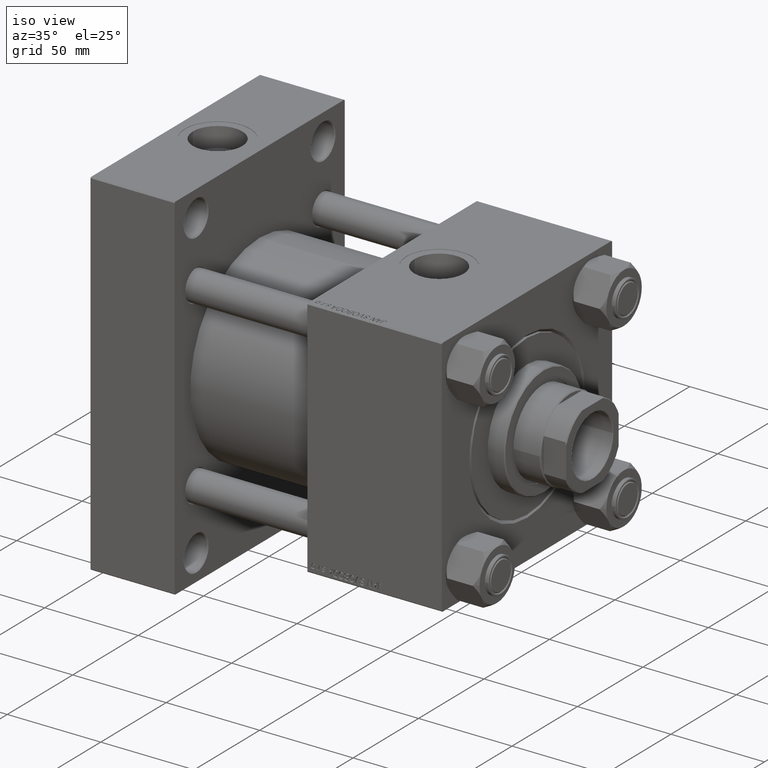
[diagram: clean part render]
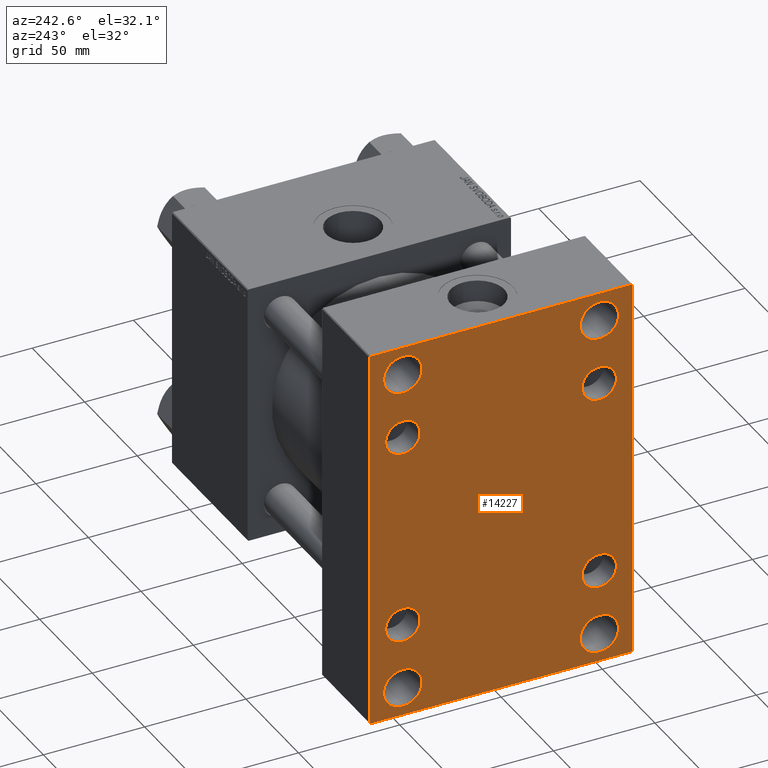
[diagram: tour spotlight — one face highlighted and labeled with its STEP entity id]
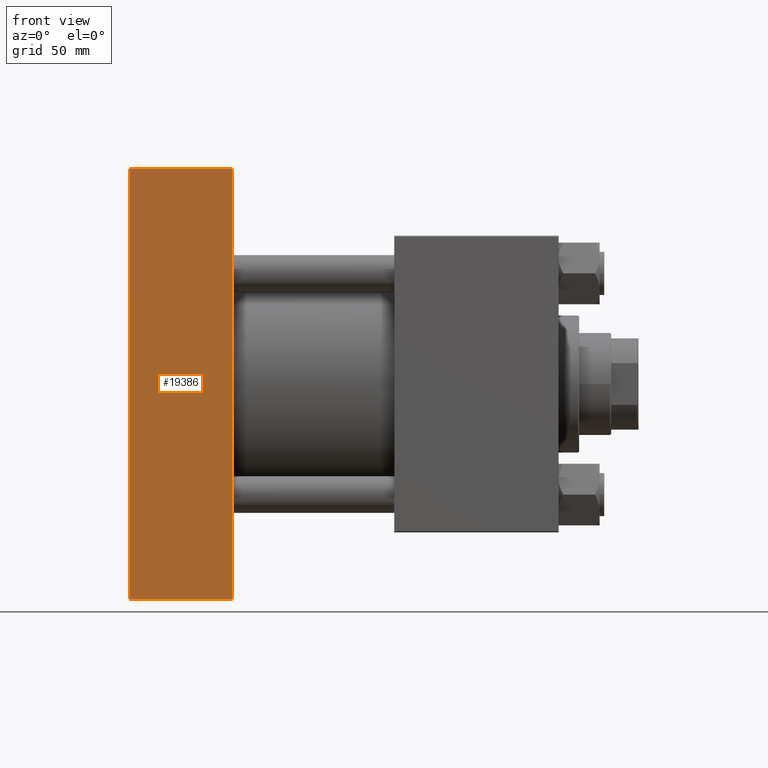
[diagram: tour spotlight — one face highlighted and labeled with its STEP entity id]
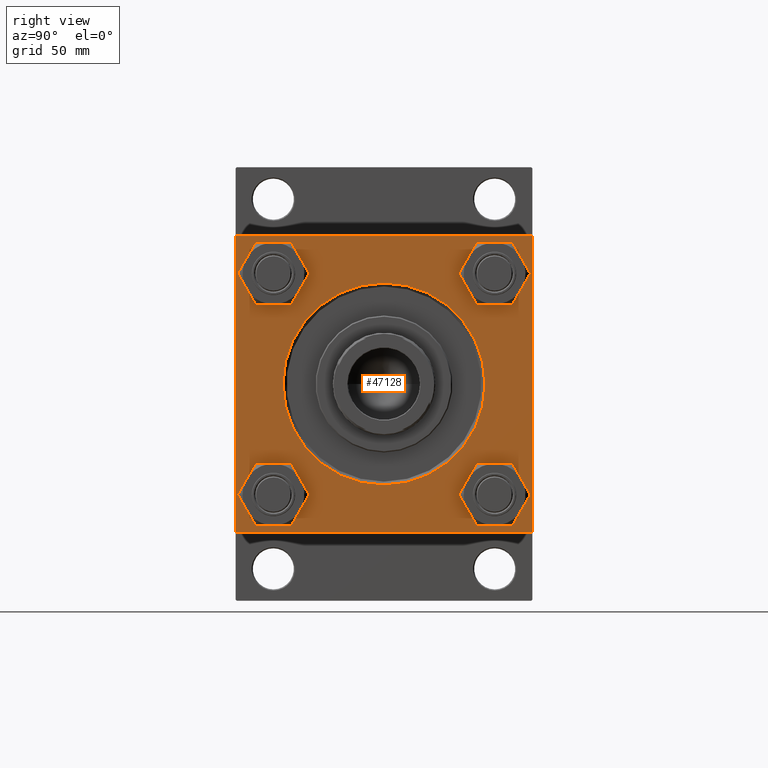
[diagram: tour spotlight — one face highlighted and labeled with its STEP entity id]
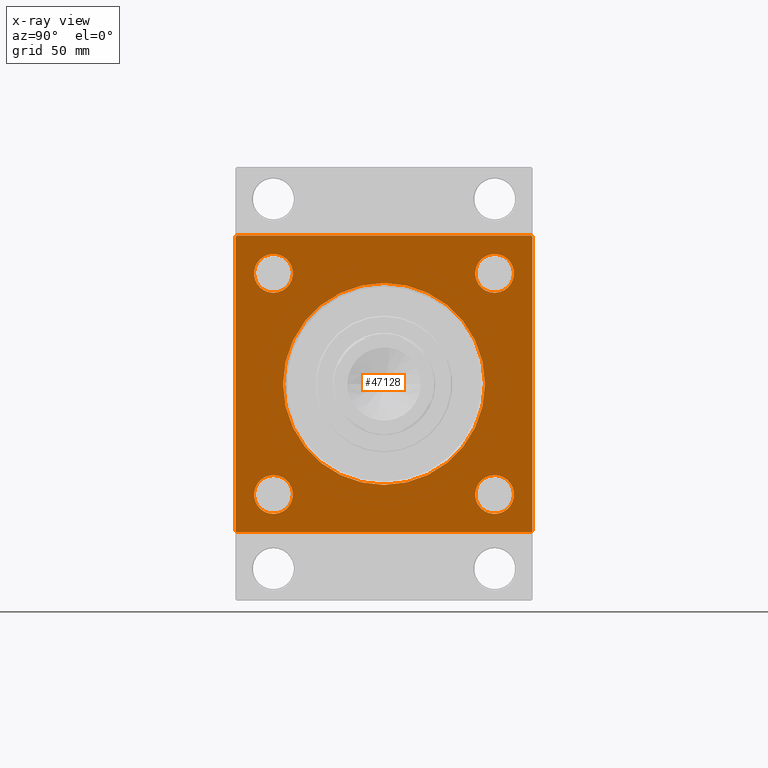
[diagram: x-ray of the same camera — body ghosted, this tour face saturated]
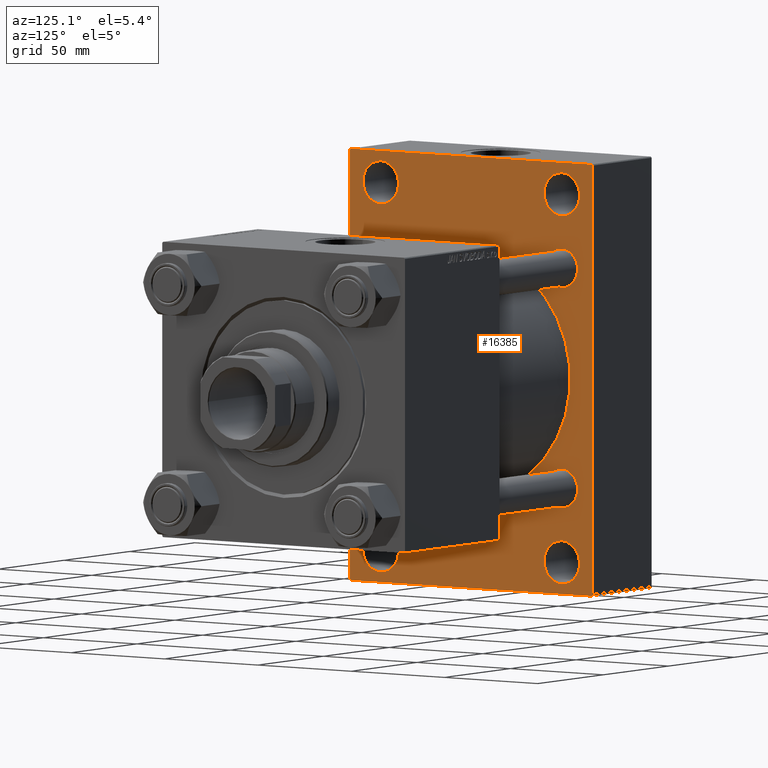
[diagram: tour spotlight — one face highlighted and labeled with its STEP entity id]
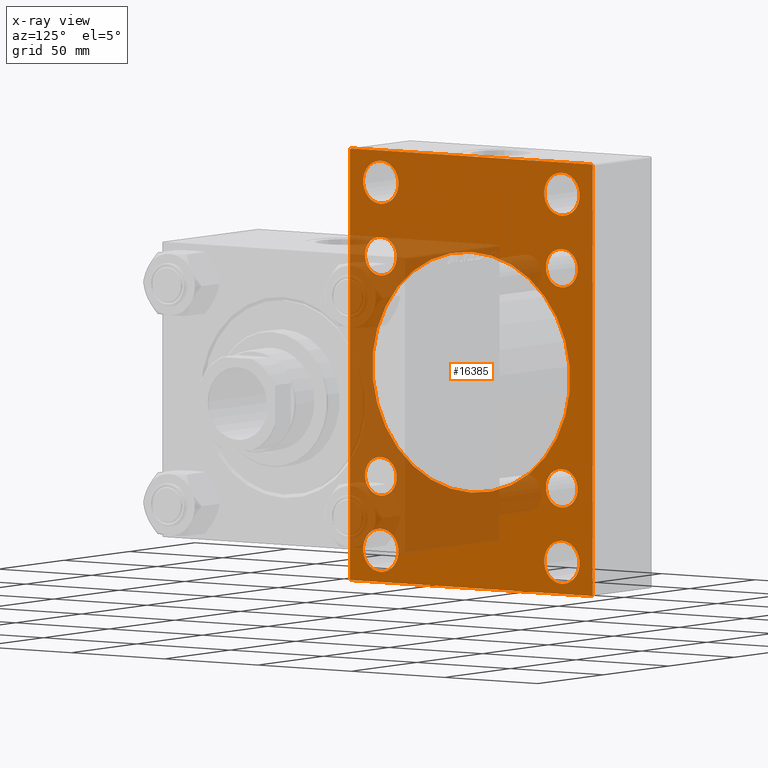
[diagram: x-ray of the same camera — body ghosted, this tour face saturated]
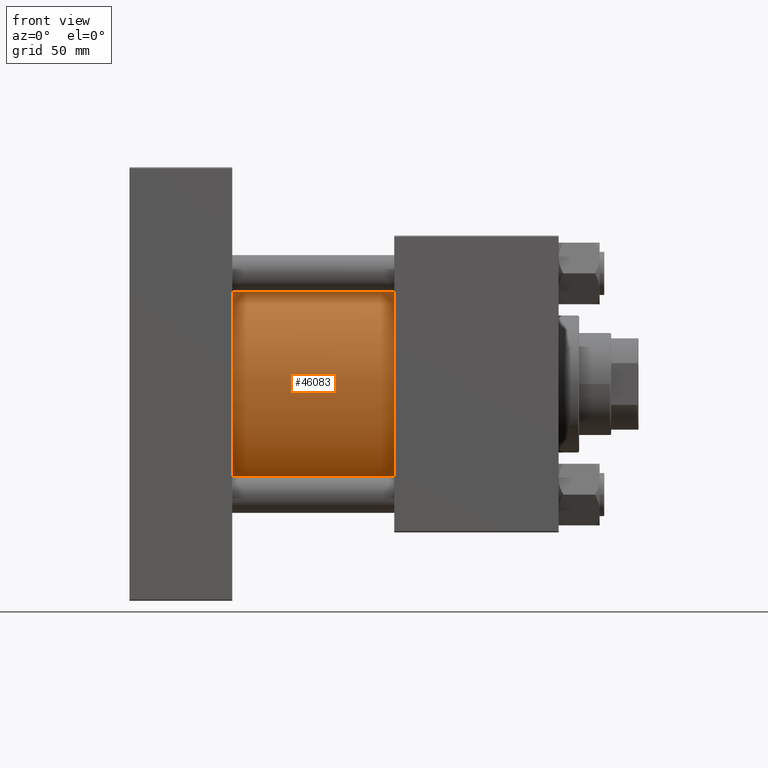
[diagram: tour spotlight — one face highlighted and labeled with its STEP entity id]
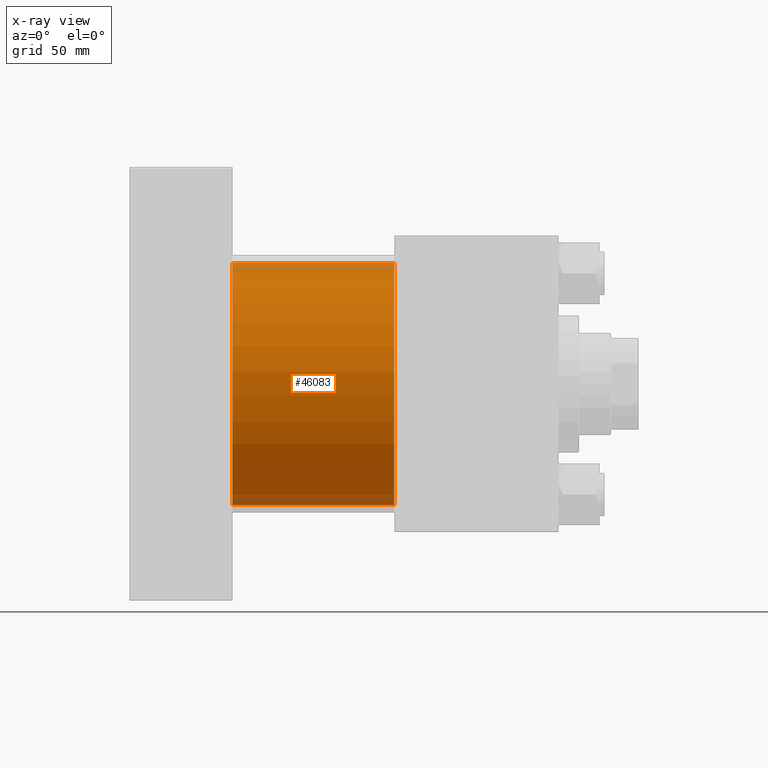
[diagram: x-ray of the same camera — body ghosted, this tour face saturated]
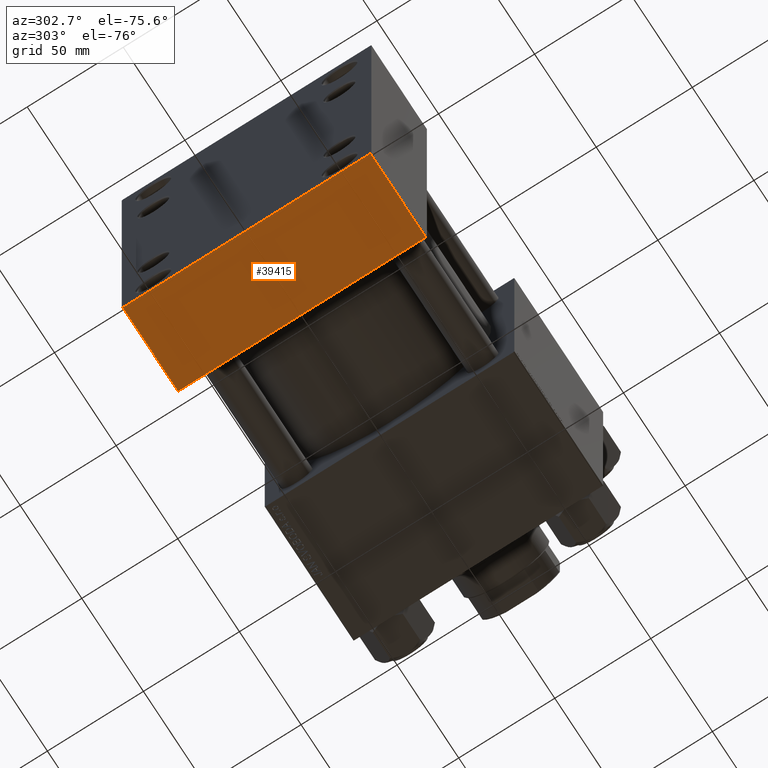
[diagram: tour spotlight — one face highlighted and labeled with its STEP entity id]
A machine part: a face-by-face anatomy tour. The part has 1184 B-rep faces; the first image is the clean iso view, then the 6 largest visible faces are spotlighted one at a time (largest first), each with its STEP entity span.

Face 1 — auxiliary view, entity #14227. In plain terms, the highlighted planar face has unit normal (-1, 0, 0).
Definition (entity closure, byte-faithful):
#6 = DIRECTION ( 'NONE',  ( 1.000000000000000000, -0.000000000000000000, 0.000000000000000000 ) ) ;
#224 = CIRCLE ( 'NONE', #32050, 9.499999999999980460 ) ;
#364 = VECTOR ( 'NONE', #23234, 1000.000000000000000 ) ;
#452 = CARTESIAN_POINT ( 'NONE',  ( 0.000000000000000000, -48.50000000000000000, 81.00000000000000000 ) ) ;
#643 = ORIENTED_EDGE ( 'NONE', *, *, #22080, .T. ) ;
#862 = CARTESIAN_POINT ( 'NONE',  ( 0.000000000000000000, 48.50000000000000000, -90.50000000000000000 ) ) ;
#1016 = EDGE_LOOP ( 'NONE', ( #7649, #33841, #49651, #643, #14593, #38509, #20423, #50417 ) ) ;
#1092 = EDGE_LOOP ( 'NONE', ( #43842, #6188 ) ) ;
#1517 = DIRECTION ( 'NONE',  ( -0.000000000000000000, -0.7071067811865474617, -0.7071067811865474617 ) ) ;
#1699 = DIRECTION ( 'NONE',  ( 0.000000000000000000, 0.000000000000000000, 1.000000000000000000 ) ) ;
#2409 = CARTESIAN_POINT ( 'NONE',  ( 0.000000000000000000, -79.74999999999639044, -79.75000000000524381 ) ) ;
#2625 = DIRECTION ( 'NONE',  ( 0.000000000000000000, 0.000000000000000000, 1.000000000000000000 ) ) ;
#2635 = ORIENTED_EDGE ( 'NONE', *, *, #9659, .T. ) ;
#2840 = CIRCLE ( 'NONE', #11817, 9.499999999999980460 ) ;
#3132 = VECTOR ( 'NONE', #33282, 1000.000000000000000 ) ;
#3194 = CARTESIAN_POINT ( 'NONE',  ( 0.000000000000000000, -64.49999999999988631, -95.00000000000008527 ) ) ;
#3302 = VERTEX_POINT ( 'NONE', #31810 ) ;
#3596 = CARTESIAN_POINT ( 'NONE',  ( 0.000000000000000000, -48.50000000000000000, 71.50000000000002842 ) ) ;
#3598 = EDGE_CURVE ( 'NONE', #41328, #5941, #31909, .T. ) ;
#3747 = VERTEX_POINT ( 'NONE', #45261 ) ;
#4088 = VECTOR ( 'NONE', #21021, 1000.000000000000000 ) ;
#5941 = VERTEX_POINT ( 'NONE', #28267 ) ;
#6060 = CARTESIAN_POINT ( 'NONE',  ( 0.000000000000000000, 48.50000000000000000, 81.00000000000000000 ) ) ;
#6188 = ORIENTED_EDGE ( 'NONE', *, *, #13371, .T. ) ;
#6738 = CARTESIAN_POINT ( 'NONE',  ( 0.000000000000000000, 65.00000000000002842, 94.99999999999997158 ) ) ;
#7173 = DIRECTION ( 'NONE',  ( 1.000000000000000000, -0.000000000000000000, 0.000000000000000000 ) ) ;
#7317 = DIRECTION ( 'NONE',  ( 0.000000000000000000, 0.000000000000000000, 1.000000000000000000 ) ) ;
#7649 = ORIENTED_EDGE ( 'NONE', *, *, #49373, .T. ) ;
#7726 = EDGE_CURVE ( 'NONE', #17595, #49430, #44421, .T. ) ;
#7822 = AXIS2_PLACEMENT_3D ( 'NONE', #28975, #32554, #8600 ) ;
#7979 = VERTEX_POINT ( 'NONE', #12992 ) ;
#8072 = ORIENTED_EDGE ( 'NONE', *, *, #29151, .T. ) ;
#8361 = CARTESIAN_POINT ( 'NONE',  ( 0.000000000000000000, 48.45000000000000995, 39.95000000000003126 ) ) ;
#8600 = DIRECTION ( 'NONE',  ( 0.000000000000000000, 0.000000000000000000, 1.000000000000000000 ) ) ;
#9659 = EDGE_CURVE ( 'NONE', #39445, #48729, #15855, .T. ) ;
#10611 = DIRECTION ( 'NONE',  ( 0.000000000000000000, 0.000000000000000000, 1.000000000000000000 ) ) ;
#10699 = EDGE_LOOP ( 'NONE', ( #2635, #8072 ) ) ;
#11140 = CARTESIAN_POINT ( 'NONE',  ( 0.000000000000000000, 48.50000000000000000, -71.50000000000004263 ) ) ;
#11160 = EDGE_CURVE ( 'NONE', #5941, #41328, #28075, .T. ) ;
#11367 = VERTEX_POINT ( 'NONE', #14627 ) ;
#11817 = AXIS2_PLACEMENT_3D ( 'NONE', #27058, #22979, #26808 ) ;
#11965 = CARTESIAN_POINT ( 'NONE',  ( -0.000000000000000000, -79.74999999999906208, 79.75000000000126477 ) ) ;
#12060 = ORIENTED_EDGE ( 'NONE', *, *, #24220, .T. ) ;
#12479 = EDGE_LOOP ( 'NONE', ( #12060, #22526 ) ) ;
#12849 = CARTESIAN_POINT ( 'NONE',  ( 0.000000000000000000, 48.45000000000000995, 48.45000000000001705 ) ) ;
#12900 = ORIENTED_EDGE ( 'NONE', *, *, #39314, .T. ) ;
#12989 = CARTESIAN_POINT ( 'NONE',  ( 0.000000000000000000, 48.50000000000000000, -81.00000000000001421 ) ) ;
#12992 = CARTESIAN_POINT ( 'NONE',  ( 0.000000000000000000, -64.99999999999998579, 94.49999999999992895 ) ) ;
#13055 = DIRECTION ( 'NONE',  ( 0.000000000000000000, -1.000000000000000000, -1.067522139062650425E-16 ) ) ;
#13371 = EDGE_CURVE ( 'NONE', #27046, #21775, #23274, .T. ) ;
#13548 = VERTEX_POINT ( 'NONE', #45053 ) ;
#13555 = AXIS2_PLACEMENT_3D ( 'NONE', #50006, #7173, #49761 ) ;
#13901 = LINE ( 'NONE', #2409, #4088 ) ;
#14002 = CIRCLE ( 'NONE', #31056, 9.499999999999980460 ) ;
#14032 = DIRECTION ( 'NONE',  ( 0.000000000000000000, -1.000000000000000000, -4.270088556250601699E-16 ) ) ;
#14227 = ADVANCED_FACE ( 'NONE', ( #15948, #23340, #38922, #21261, #17453, #48077, #16705, #32512, #44261 ), #29185, .T. ) ;
#14593 = ORIENTED_EDGE ( 'NONE', *, *, #23188, .F. ) ;
#14599 = VERTEX_POINT ( 'NONE', #18396 ) ;
#14627 = CARTESIAN_POINT ( 'NONE',  ( 0.000000000000000000, 48.50000000000000000, 90.49999999999998579 ) ) ;
#14747 = CARTESIAN_POINT ( 'NONE',  ( 0.000000000000000000, -48.44999999999999574, 56.95000000000000995 ) ) ;
#15049 = AXIS2_PLACEMENT_3D ( 'NONE', #28191, #38943, #47345 ) ;
#15598 = LINE ( 'NONE', #42650, #364 ) ;
#15731 = ORIENTED_EDGE ( 'NONE', *, *, #18175, .T. ) ;
#15855 = CIRCLE ( 'NONE', #30490, 9.499999999999980460 ) ;
#15883 = AXIS2_PLACEMENT_3D ( 'NONE', #6060, #37686, #7317 ) ;
#15948 = FACE_BOUND ( 'NONE', #37992, .T. ) ;
#16074 = CARTESIAN_POINT ( 'NONE',  ( 0.000000000000000000, -48.50000000000000000, -90.50000000000000000 ) ) ;
#16644 = AXIS2_PLACEMENT_3D ( 'NONE', #30674, #18184, #2625 ) ;
#16705 = FACE_BOUND ( 'NONE', #28869, .T. ) ;
#16831 = DIRECTION ( 'NONE',  ( 1.000000000000000000, -0.000000000000000000, 0.000000000000000000 ) ) ;
#16839 = AXIS2_PLACEMENT_3D ( 'NONE', #18940, #42175, #38085 ) ;
#17197 = DIRECTION ( 'NONE',  ( 1.000000000000000000, -0.000000000000000000, 0.000000000000000000 ) ) ;
#17200 = DIRECTION ( 'NONE',  ( -1.000000000000000000, 0.000000000000000000, -0.000000000000000000 ) ) ;
#17320 = LINE ( 'NONE', #25228, #32532 ) ;
#17450 = CARTESIAN_POINT ( 'NONE',  ( 0.000000000000000000, -48.44999999999999574, -48.45000000000003126 ) ) ;
#17453 = FACE_BOUND ( 'NONE', #12479, .T. ) ;
#17595 = VERTEX_POINT ( 'NONE', #42611 ) ;
#17831 = CARTESIAN_POINT ( 'NONE',  ( 0.000000000000000000, 48.45000000000000995, -56.94999999999999574 ) ) ;
#18036 = AXIS2_PLACEMENT_3D ( 'NONE', #34958, #6, #42876 ) ;
#18175 = EDGE_CURVE ( 'NONE', #11367, #13548, #47797, .T. ) ;
#18184 = DIRECTION ( 'NONE',  ( 1.000000000000000000, -0.000000000000000000, 0.000000000000000000 ) ) ;
#18396 = CARTESIAN_POINT ( 'NONE',  ( 0.000000000000000000, 65.00000000000002842, -94.50000000000002842 ) ) ;
#18612 = ORIENTED_EDGE ( 'NONE', *, *, #44462, .T. ) ;
#18715 = LINE ( 'NONE', #6738, #3132 ) ;
#18940 = CARTESIAN_POINT ( 'NONE',  ( 0.000000000000000000, 48.50000000000000000, 81.00000000000000000 ) ) ;
#19081 = DIRECTION ( 'NONE',  ( 1.000000000000000000, -0.000000000000000000, 0.000000000000000000 ) ) ;
#19116 = ORIENTED_EDGE ( 'NONE', *, *, #11160, .T. ) ;
#19971 = CARTESIAN_POINT ( 'NONE',  ( 0.000000000000000000, -64.49999999999994316, 94.99999999999995737 ) ) ;
#20423 = ORIENTED_EDGE ( 'NONE', *, *, #7726, .F. ) ;
#20728 = VERTEX_POINT ( 'NONE', #8361 ) ;
#21021 = DIRECTION ( 'NONE',  ( 0.000000000000000000, -0.7071067811865867636, 0.7071067811865081598 ) ) ;
#21108 = VERTEX_POINT ( 'NONE', #31630 ) ;
#21261 = FACE_BOUND ( 'NONE', #1092, .T. ) ;
#21676 = VERTEX_POINT ( 'NONE', #44573 ) ;
#21775 = VERTEX_POINT ( 'NONE', #11140 ) ;
#22005 = DIRECTION ( 'NONE',  ( 1.000000000000000000, -0.000000000000000000, 0.000000000000000000 ) ) ;
#22080 = EDGE_CURVE ( 'NONE', #32725, #21108, #13901, .T. ) ;
#22253 = CARTESIAN_POINT ( 'NONE',  ( 0.000000000000000000, -48.44999999999999574, -48.45000000000003126 ) ) ;
#22526 = ORIENTED_EDGE ( 'NONE', *, *, #27807, .T. ) ;
#22979 = DIRECTION ( 'NONE',  ( 1.000000000000000000, -0.000000000000000000, 0.000000000000000000 ) ) ;
#23183 = CIRCLE ( 'NONE', #15049, 8.499999999999980460 ) ;
#23188 = EDGE_CURVE ( 'NONE', #7979, #21108, #28215, .T. ) ;
#23234 = DIRECTION ( 'NONE',  ( 0.000000000000000000, 0.7071067811865672237, -0.7071067811865279218 ) ) ;
#23274 = CIRCLE ( 'NONE', #7822, 9.499999999999980460 ) ;
#23340 = FACE_BOUND ( 'NONE', #10699, .T. ) ;
#23580 = DIRECTION ( 'NONE',  ( 1.000000000000000000, -0.000000000000000000, 0.000000000000000000 ) ) ;
#24220 = EDGE_CURVE ( 'NONE', #34679, #21676, #48843, .T. ) ;
#25110 = ORIENTED_EDGE ( 'NONE', *, *, #44400, .T. ) ;
#25168 = CARTESIAN_POINT ( 'NONE',  ( 0.000000000000000000, 48.45000000000000995, -48.45000000000001705 ) ) ;
#25228 = CARTESIAN_POINT ( 'NONE',  ( 0.000000000000000000, 79.75000000000002842, -79.75000000000002842 ) ) ;
#25236 = EDGE_LOOP ( 'NONE', ( #19116, #37505 ) ) ;
#25307 = ORIENTED_EDGE ( 'NONE', *, *, #35137, .T. ) ;
#25514 = EDGE_CURVE ( 'NONE', #3747, #32725, #33407, .T. ) ;
#25779 = CIRCLE ( 'NONE', #13555, 9.499999999999980460 ) ;
#25863 = DIRECTION ( 'NONE',  ( 0.000000000000000000, 0.000000000000000000, 1.000000000000000000 ) ) ;
#25954 = EDGE_CURVE ( 'NONE', #7979, #49430, #46904, .T. ) ;
#26032 = AXIS2_PLACEMENT_3D ( 'NONE', #31233, #23580, #39404 ) ;
#26330 = VECTOR ( 'NONE', #13055, 1000.000000000000000 ) ;
#26808 = DIRECTION ( 'NONE',  ( 0.000000000000000000, 0.000000000000000000, 1.000000000000000000 ) ) ;
#27046 = VERTEX_POINT ( 'NONE', #862 ) ;
#27058 = CARTESIAN_POINT ( 'NONE',  ( 0.000000000000000000, -48.50000000000000000, -81.00000000000001421 ) ) ;
#27495 = DIRECTION ( 'NONE',  ( -0.000000000000000000, 0.7071067811865573427, 0.7071067811865378028 ) ) ;
#27712 = ORIENTED_EDGE ( 'NONE', *, *, #37234, .T. ) ;
#27807 = EDGE_CURVE ( 'NONE', #21676, #34679, #36749, .T. ) ;
#28075 = CIRCLE ( 'NONE', #42782, 8.499999999999980460 ) ;
#28191 = CARTESIAN_POINT ( 'NONE',  ( 0.000000000000000000, 48.45000000000000995, 48.45000000000001705 ) ) ;
#28215 = LINE ( 'NONE', #43800, #42449 ) ;
#28267 = CARTESIAN_POINT ( 'NONE',  ( 0.000000000000000000, -48.44999999999999574, -39.95000000000004547 ) ) ;
#28383 = DIRECTION ( 'NONE',  ( 1.000000000000000000, -0.000000000000000000, 0.000000000000000000 ) ) ;
#28513 = CARTESIAN_POINT ( 'NONE',  ( 0.000000000000000000, 65.00000000000002842, 94.49999999999997158 ) ) ;
#28808 = VERTEX_POINT ( 'NONE', #16074 ) ;
#28869 = EDGE_LOOP ( 'NONE', ( #18612, #25307 ) ) ;
#28975 = CARTESIAN_POINT ( 'NONE',  ( 0.000000000000000000, 48.50000000000000000, -81.00000000000001421 ) ) ;
#29151 = EDGE_CURVE ( 'NONE', #48729, #39445, #14002, .T. ) ;
#29185 = PLANE ( 'NONE',  #47761 ) ;
#30320 = ORIENTED_EDGE ( 'NONE', *, *, #37927, .T. ) ;
#30477 = CIRCLE ( 'NONE', #16644, 8.499999999999980460 ) ;
#30490 = AXIS2_PLACEMENT_3D ( 'NONE', #33143, #16831, #40297 ) ;
#30674 = CARTESIAN_POINT ( 'NONE',  ( 0.000000000000000000, 48.45000000000000995, -48.45000000000001705 ) ) ;
#31056 = AXIS2_PLACEMENT_3D ( 'NONE', #452, #19081, #47139 ) ;
#31233 = CARTESIAN_POINT ( 'NONE',  ( 0.000000000000000000, -48.44999999999999574, 48.45000000000003126 ) ) ;
#31630 = CARTESIAN_POINT ( 'NONE',  ( 0.000000000000000000, -64.99999999999998579, -94.50000000000004263 ) ) ;
#31810 = CARTESIAN_POINT ( 'NONE',  ( 0.000000000000000000, -48.50000000000000000, -71.50000000000004263 ) ) ;
#31909 = CIRCLE ( 'NONE', #42529, 8.499999999999980460 ) ;
#32050 = AXIS2_PLACEMENT_3D ( 'NONE', #12989, #37151, #10611 ) ;
#32300 = CIRCLE ( 'NONE', #39636, 8.499999999999980460 ) ;
#32512 = FACE_BOUND ( 'NONE', #50001, .T. ) ;
#32532 = VECTOR ( 'NONE', #1517, 1000.000000000000114 ) ;
#32554 = DIRECTION ( 'NONE',  ( 1.000000000000000000, -0.000000000000000000, 0.000000000000000000 ) ) ;
#32597 = VECTOR ( 'NONE', #27495, 1000.000000000000000 ) ;
#32661 = EDGE_CURVE ( 'NONE', #21775, #27046, #224, .T. ) ;
#32725 = VERTEX_POINT ( 'NONE', #3194 ) ;
#33084 = DIRECTION ( 'NONE',  ( 1.000000000000000000, -0.000000000000000000, 0.000000000000000000 ) ) ;
#33143 = CARTESIAN_POINT ( 'NONE',  ( 0.000000000000000000, -48.50000000000000000, 81.00000000000000000 ) ) ;
#33282 = DIRECTION ( 'NONE',  ( 0.000000000000000000, 0.000000000000000000, -1.000000000000000000 ) ) ;
#33407 = LINE ( 'NONE', #48965, #49707 ) ;
#33603 = VERTEX_POINT ( 'NONE', #28513 ) ;
#33607 = CARTESIAN_POINT ( 'NONE',  ( 0.000000000000000000, 48.45000000000000995, -39.95000000000003126 ) ) ;
#33806 = CARTESIAN_POINT ( 'NONE',  ( 0.000000000000000000, -48.44999999999999574, -56.95000000000000995 ) ) ;
#33841 = ORIENTED_EDGE ( 'NONE', *, *, #48136, .T. ) ;
#34036 = ORIENTED_EDGE ( 'NONE', *, *, #37005, .T. ) ;
#34265 = DIRECTION ( 'NONE',  ( 0.000000000000000000, 0.000000000000000000, 1.000000000000000000 ) ) ;
#34679 = VERTEX_POINT ( 'NONE', #14747 ) ;
#34958 = CARTESIAN_POINT ( 'NONE',  ( 0.000000000000000000, -48.44999999999999574, 48.45000000000003126 ) ) ;
#35137 = EDGE_CURVE ( 'NONE', #46280, #49959, #30477, .T. ) ;
#35849 = DIRECTION ( 'NONE',  ( -0.000000000000000000, 0.000000000000000000, 1.000000000000000000 ) ) ;
#36594 = CARTESIAN_POINT ( 'NONE',  ( 0.000000000000000000, 0.000000000000000000, 0.000000000000000000 ) ) ;
#36624 = VERTEX_POINT ( 'NONE', #37364 ) ;
#36749 = CIRCLE ( 'NONE', #18036, 8.499999999999980460 ) ;
#36960 = AXIS2_PLACEMENT_3D ( 'NONE', #12849, #28383, #43967 ) ;
#37005 = EDGE_CURVE ( 'NONE', #28808, #3302, #2840, .T. ) ;
#37151 = DIRECTION ( 'NONE',  ( 1.000000000000000000, -0.000000000000000000, 0.000000000000000000 ) ) ;
#37234 = EDGE_CURVE ( 'NONE', #13548, #11367, #37875, .T. ) ;
#37364 = CARTESIAN_POINT ( 'NONE',  ( 0.000000000000000000, 48.45000000000000995, 56.94999999999999574 ) ) ;
#37505 = ORIENTED_EDGE ( 'NONE', *, *, #3598, .T. ) ;
#37686 = DIRECTION ( 'NONE',  ( 1.000000000000000000, -0.000000000000000000, 0.000000000000000000 ) ) ;
#37875 = CIRCLE ( 'NONE', #15883, 9.499999999999980460 ) ;
#37927 = EDGE_CURVE ( 'NONE', #20728, #36624, #42696, .T. ) ;
#37992 = EDGE_LOOP ( 'NONE', ( #15731, #27712 ) ) ;
#38085 = DIRECTION ( 'NONE',  ( 0.000000000000000000, 0.000000000000000000, 1.000000000000000000 ) ) ;
#38509 = ORIENTED_EDGE ( 'NONE', *, *, #25954, .T. ) ;
#38922 = FACE_BOUND ( 'NONE', #40808, .T. ) ;
#38943 = DIRECTION ( 'NONE',  ( 1.000000000000000000, -0.000000000000000000, 0.000000000000000000 ) ) ;
#39314 = EDGE_CURVE ( 'NONE', #36624, #20728, #23183, .T. ) ;
#39404 = DIRECTION ( 'NONE',  ( 0.000000000000000000, 0.000000000000000000, 1.000000000000000000 ) ) ;
#39445 = VERTEX_POINT ( 'NONE', #44528 ) ;
#39551 = EDGE_CURVE ( 'NONE', #17595, #33603, #15598, .T. ) ;
#39636 = AXIS2_PLACEMENT_3D ( 'NONE', #25168, #33084, #1699 ) ;
#39970 = DIRECTION ( 'NONE',  ( 0.000000000000000000, 0.000000000000000000, -1.000000000000000000 ) ) ;
#40297 = DIRECTION ( 'NONE',  ( 0.000000000000000000, 0.000000000000000000, 1.000000000000000000 ) ) ;
#40808 = EDGE_LOOP ( 'NONE', ( #25110, #34036 ) ) ;
#41328 = VERTEX_POINT ( 'NONE', #33806 ) ;
#42175 = DIRECTION ( 'NONE',  ( 1.000000000000000000, -0.000000000000000000, 0.000000000000000000 ) ) ;
#42449 = VECTOR ( 'NONE', #39970, 1000.000000000000000 ) ;
#42529 = AXIS2_PLACEMENT_3D ( 'NONE', #17450, #17197, #25863 ) ;
#42611 = CARTESIAN_POINT ( 'NONE',  ( 0.000000000000000000, 64.50000000000000000, 94.99999999999997158 ) ) ;
#42650 = CARTESIAN_POINT ( 'NONE',  ( 0.000000000000000000, 79.74999999999818101, 79.75000000000261480 ) ) ;
#42696 = CIRCLE ( 'NONE', #36960, 8.499999999999980460 ) ;
#42782 = AXIS2_PLACEMENT_3D ( 'NONE', #22253, #22005, #34265 ) ;
#42876 = DIRECTION ( 'NONE',  ( 0.000000000000000000, 0.000000000000000000, 1.000000000000000000 ) ) ;
#43800 = CARTESIAN_POINT ( 'NONE',  ( 0.000000000000000000, -64.99999999999998579, 94.99999999999995737 ) ) ;
#43842 = ORIENTED_EDGE ( 'NONE', *, *, #32661, .T. ) ;
#43967 = DIRECTION ( 'NONE',  ( 0.000000000000000000, 0.000000000000000000, 1.000000000000000000 ) ) ;
#44261 = FACE_OUTER_BOUND ( 'NONE', #1016, .T. ) ;
#44400 = EDGE_CURVE ( 'NONE', #3302, #28808, #25779, .T. ) ;
#44421 = LINE ( 'NONE', #48742, #26330 ) ;
#44462 = EDGE_CURVE ( 'NONE', #49959, #46280, #32300, .T. ) ;
#44528 = CARTESIAN_POINT ( 'NONE',  ( 0.000000000000000000, -48.50000000000000000, 90.49999999999998579 ) ) ;
#44573 = CARTESIAN_POINT ( 'NONE',  ( 0.000000000000000000, -48.44999999999999574, 39.95000000000004547 ) ) ;
#45053 = CARTESIAN_POINT ( 'NONE',  ( 0.000000000000000000, 48.50000000000000000, 71.50000000000002842 ) ) ;
#45261 = CARTESIAN_POINT ( 'NONE',  ( 0.000000000000000000, 64.50000000000002842, -95.00000000000002842 ) ) ;
#46280 = VERTEX_POINT ( 'NONE', #17831 ) ;
#46904 = LINE ( 'NONE', #11965, #32597 ) ;
#47139 = DIRECTION ( 'NONE',  ( 0.000000000000000000, 0.000000000000000000, 1.000000000000000000 ) ) ;
#47345 = DIRECTION ( 'NONE',  ( 0.000000000000000000, 0.000000000000000000, 1.000000000000000000 ) ) ;
#47761 = AXIS2_PLACEMENT_3D ( 'NONE', #36594, #17200, #35849 ) ;
#47797 = CIRCLE ( 'NONE', #16839, 9.499999999999980460 ) ;
#48077 = FACE_BOUND ( 'NONE', #25236, .T. ) ;
#48136 = EDGE_CURVE ( 'NONE', #14599, #3747, #17320, .T. ) ;
#48729 = VERTEX_POINT ( 'NONE', #3596 ) ;
#48742 = CARTESIAN_POINT ( 'NONE',  ( 0.000000000000000000, 65.00000000000002842, 94.99999999999997158 ) ) ;
#48843 = CIRCLE ( 'NONE', #26032, 8.499999999999980460 ) ;
#48965 = CARTESIAN_POINT ( 'NONE',  ( 0.000000000000000000, 65.00000000000002842, -95.00000000000002842 ) ) ;
#49373 = EDGE_CURVE ( 'NONE', #33603, #14599, #18715, .T. ) ;
#49430 = VERTEX_POINT ( 'NONE', #19971 ) ;
#49651 = ORIENTED_EDGE ( 'NONE', *, *, #25514, .T. ) ;
#49707 = VECTOR ( 'NONE', #14032, 1000.000000000000000 ) ;
#49761 = DIRECTION ( 'NONE',  ( 0.000000000000000000, 0.000000000000000000, 1.000000000000000000 ) ) ;
#49959 = VERTEX_POINT ( 'NONE', #33607 ) ;
#50001 = EDGE_LOOP ( 'NONE', ( #12900, #30320 ) ) ;
#50006 = CARTESIAN_POINT ( 'NONE',  ( 0.000000000000000000, -48.50000000000000000, -81.00000000000001421 ) ) ;
#50417 = ORIENTED_EDGE ( 'NONE', *, *, #39551, .T. ) ;

Face 2 — front view, entity #19386. In plain terms, the highlighted planar face has unit normal (0, 1, 0).
Definition (entity closure, byte-faithful):
#8 = VERTEX_POINT ( 'NONE', #8346 ) ;
#3251 = VECTOR ( 'NONE', #9985, 1000.000000000000000 ) ;
#3710 = ORIENTED_EDGE ( 'NONE', *, *, #23188, .T. ) ;
#7141 = VECTOR ( 'NONE', #44015, 1000.000000000000000 ) ;
#7979 = VERTEX_POINT ( 'NONE', #12992 ) ;
#8346 = CARTESIAN_POINT ( 'NONE',  ( 45.00000000000000000, -64.99999999999998579, -94.50000000000004263 ) ) ;
#8635 = ORIENTED_EDGE ( 'NONE', *, *, #46946, .T. ) ;
#9985 = DIRECTION ( 'NONE',  ( 1.000000000000000000, 0.000000000000000000, 0.000000000000000000 ) ) ;
#10538 = LINE ( 'NONE', #41915, #48119 ) ;
#11239 = DIRECTION ( 'NONE',  ( -0.000000000000000000, 1.000000000000000000, 0.000000000000000000 ) ) ;
#12992 = CARTESIAN_POINT ( 'NONE',  ( 0.000000000000000000, -64.99999999999998579, 94.49999999999992895 ) ) ;
#17457 = LINE ( 'NONE', #48594, #7141 ) ;
#19386 = ADVANCED_FACE ( 'NONE', ( #19626 ), #35207, .F. ) ;
#19626 = FACE_OUTER_BOUND ( 'NONE', #43652, .T. ) ;
#21108 = VERTEX_POINT ( 'NONE', #31630 ) ;
#22192 = LINE ( 'NONE', #22453, #3251 ) ;
#22453 = CARTESIAN_POINT ( 'NONE',  ( 45.00000000000000000, -64.99999999999998579, -94.50000000000004263 ) ) ;
#23188 = EDGE_CURVE ( 'NONE', #7979, #21108, #28215, .T. ) ;
#23608 = EDGE_CURVE ( 'NONE', #26859, #8, #10538, .T. ) ;
#24777 = EDGE_CURVE ( 'NONE', #21108, #8, #22192, .T. ) ;
#26777 = DIRECTION ( 'NONE',  ( 0.000000000000000000, -0.000000000000000000, 1.000000000000000000 ) ) ;
#26859 = VERTEX_POINT ( 'NONE', #40706 ) ;
#28215 = LINE ( 'NONE', #43800, #42449 ) ;
#31630 = CARTESIAN_POINT ( 'NONE',  ( 0.000000000000000000, -64.99999999999998579, -94.50000000000004263 ) ) ;
#31833 = ORIENTED_EDGE ( 'NONE', *, *, #24777, .T. ) ;
#35207 = PLANE ( 'NONE',  #36516 ) ;
#36516 = AXIS2_PLACEMENT_3D ( 'NONE', #41854, #11239, #26777 ) ;
#38478 = ORIENTED_EDGE ( 'NONE', *, *, #23608, .F. ) ;
#39970 = DIRECTION ( 'NONE',  ( 0.000000000000000000, 0.000000000000000000, -1.000000000000000000 ) ) ;
#40706 = CARTESIAN_POINT ( 'NONE',  ( 45.00000000000000000, -64.99999999999998579, 94.49999999999992895 ) ) ;
#40906 = DIRECTION ( 'NONE',  ( 0.000000000000000000, 0.000000000000000000, -1.000000000000000000 ) ) ;
#41854 = CARTESIAN_POINT ( 'NONE',  ( 45.00000000000000000, -64.99999999999998579, 94.99999999999995737 ) ) ;
#41915 = CARTESIAN_POINT ( 'NONE',  ( 45.00000000000000000, -64.99999999999998579, 94.99999999999995737 ) ) ;
#42449 = VECTOR ( 'NONE', #39970, 1000.000000000000000 ) ;
#43652 = EDGE_LOOP ( 'NONE', ( #3710, #31833, #38478, #8635 ) ) ;
#43800 = CARTESIAN_POINT ( 'NONE',  ( 0.000000000000000000, -64.99999999999998579, 94.99999999999995737 ) ) ;
#44015 = DIRECTION ( 'NONE',  ( -1.000000000000000000, 0.000000000000000000, 0.000000000000000000 ) ) ;
#46946 = EDGE_CURVE ( 'NONE', #26859, #7979, #17457, .T. ) ;
#48119 = VECTOR ( 'NONE', #40906, 1000.000000000000000 ) ;
#48594 = CARTESIAN_POINT ( 'NONE',  ( 45.00000000000000000, -64.99999999999998579, 94.49999999999992895 ) ) ;

Face 3 — right view, entity #47128. An x-ray twin of the same camera follows (body ghosted, this face saturated) — the face is partly hidden behind the body. In plain terms, the highlighted planar face has unit normal (-1, 0, 0).
Definition (entity closure, byte-faithful):
#19 = VERTEX_POINT ( 'NONE', #3509 ) ;
#36 = EDGE_LOOP ( 'NONE', ( #22300, #23722 ) ) ;
#185 = VECTOR ( 'NONE', #37947, 1000.000000000000000 ) ;
#278 = CARTESIAN_POINT ( 'NONE',  ( 188.0000000000000000, -48.44999999999999574, -48.45000000000003126 ) ) ;
#1388 = CARTESIAN_POINT ( 'NONE',  ( 188.0000000000000000, -64.99999999999998579, 64.49999999999997158 ) ) ;
#1571 = ORIENTED_EDGE ( 'NONE', *, *, #49153, .T. ) ;
#1827 = VERTEX_POINT ( 'NONE', #16062 ) ;
#1980 = CIRCLE ( 'NONE', #46817, 8.500000000000035527 ) ;
#2465 = DIRECTION ( 'NONE',  ( 0.000000000000000000, 0.000000000000000000, 1.000000000000000000 ) ) ;
#2670 = CARTESIAN_POINT ( 'NONE',  ( 188.0000000000000000, 0.000000000000000000, 0.000000000000000000 ) ) ;
#2871 = CIRCLE ( 'NONE', #29778, 44.25000000000006395 ) ;
#2925 = CIRCLE ( 'NONE', #11903, 8.500000000000035527 ) ;
#3105 = LINE ( 'NONE', #18661, #38676 ) ;
#3217 = CIRCLE ( 'NONE', #31727, 8.500000000000035527 ) ;
#3265 = EDGE_CURVE ( 'NONE', #6904, #1827, #40882, .T. ) ;
#3355 = CARTESIAN_POINT ( 'NONE',  ( 188.0000000000000000, -64.49999999999997158, 65.00000000000000000 ) ) ;
#3509 = CARTESIAN_POINT ( 'NONE',  ( 188.0000000000000000, 48.45000000000000995, -56.95000000000005258 ) ) ;
#3815 = EDGE_CURVE ( 'NONE', #31444, #16436, #3902, .T. ) ;
#3902 = LINE ( 'NONE', #42440, #29509 ) ;
#4045 = EDGE_LOOP ( 'NONE', ( #47032, #22549, #38865, #50218, #22196, #34988, #38915, #5871 ) ) ;
#4574 = VERTEX_POINT ( 'NONE', #38358 ) ;
#4846 = VERTEX_POINT ( 'NONE', #3355 ) ;
#4972 = DIRECTION ( 'NONE',  ( -0.000000000000000000, -0.7071067811865376918, -0.7071067811865574537 ) ) ;
#5361 = ORIENTED_EDGE ( 'NONE', *, *, #11469, .T. ) ;
#5856 = DIRECTION ( 'NONE',  ( -1.000000000000000000, 0.000000000000000000, -0.000000000000000000 ) ) ;
#5871 = ORIENTED_EDGE ( 'NONE', *, *, #24429, .T. ) ;
#6484 = FACE_BOUND ( 'NONE', #14338, .T. ) ;
#6823 = CARTESIAN_POINT ( 'NONE',  ( 188.0000000000000000, 65.00000000000002842, 65.00000000000001421 ) ) ;
#6904 = VERTEX_POINT ( 'NONE', #23250 ) ;
#7426 = DIRECTION ( 'NONE',  ( 0.000000000000000000, 0.000000000000000000, 1.000000000000000000 ) ) ;
#7779 = DIRECTION ( 'NONE',  ( 0.000000000000000000, 0.000000000000000000, -1.000000000000000000 ) ) ;
#7896 = ORIENTED_EDGE ( 'NONE', *, *, #12998, .T. ) ;
#9594 = EDGE_CURVE ( 'NONE', #34516, #26233, #1980, .T. ) ;
#9818 = EDGE_CURVE ( 'NONE', #26233, #34516, #13432, .T. ) ;
#9977 = CARTESIAN_POINT ( 'NONE',  ( 188.0000000000000000, 65.00000000000002842, 64.50000000000004263 ) ) ;
#10121 = CARTESIAN_POINT ( 'NONE',  ( 188.0000000000000000, 64.50000000000005684, 65.00000000000001421 ) ) ;
#10321 = FACE_BOUND ( 'NONE', #24576, .T. ) ;
#10761 = CARTESIAN_POINT ( 'NONE',  ( 188.0000000000000000, 0.000000000000000000, -44.25000000000006395 ) ) ;
#11279 = CARTESIAN_POINT ( 'NONE',  ( 188.0000000000000000, 5.419062086227046872E-15, 44.25000000000006395 ) ) ;
#11338 = DIRECTION ( 'NONE',  ( 0.000000000000000000, 0.000000000000000000, 1.000000000000000000 ) ) ;
#11469 = EDGE_CURVE ( 'NONE', #36927, #40849, #48531, .T. ) ;
#11728 = EDGE_CURVE ( 'NONE', #31444, #14375, #18668, .T. ) ;
#11772 = DIRECTION ( 'NONE',  ( -1.000000000000000000, 0.000000000000000000, -0.000000000000000000 ) ) ;
#11903 = AXIS2_PLACEMENT_3D ( 'NONE', #46677, #19864, #31854 ) ;
#12642 = VERTEX_POINT ( 'NONE', #31912 ) ;
#12667 = VECTOR ( 'NONE', #41644, 1000.000000000000000 ) ;
#12779 = CIRCLE ( 'NONE', #32203, 8.500000000000035527 ) ;
#12998 = EDGE_CURVE ( 'NONE', #1827, #6904, #2925, .T. ) ;
#13021 = VECTOR ( 'NONE', #4972, 999.9999999999998863 ) ;
#13159 = CARTESIAN_POINT ( 'NONE',  ( 188.0000000000000000, 64.50000000000005684, 65.00000000000001421 ) ) ;
#13179 = AXIS2_PLACEMENT_3D ( 'NONE', #14321, #22456, #41366 ) ;
#13432 = CIRCLE ( 'NONE', #19089, 8.500000000000035527 ) ;
#13958 = DIRECTION ( 'NONE',  ( -1.000000000000000000, 0.000000000000000000, -0.000000000000000000 ) ) ;
#14321 = CARTESIAN_POINT ( 'NONE',  ( 188.0000000000000000, -48.44999999999999574, 48.45000000000003126 ) ) ;
#14338 = EDGE_LOOP ( 'NONE', ( #5361, #29283 ) ) ;
#14375 = VERTEX_POINT ( 'NONE', #40929 ) ;
#14397 = PLANE ( 'NONE',  #20986 ) ;
#14795 = CIRCLE ( 'NONE', #21288, 8.500000000000035527 ) ;
#15569 = EDGE_CURVE ( 'NONE', #25409, #27166, #12779, .T. ) ;
#16062 = CARTESIAN_POINT ( 'NONE',  ( 188.0000000000000000, -48.44999999999999574, 39.94999999999999574 ) ) ;
#16111 = DIRECTION ( 'NONE',  ( 0.000000000000000000, 0.000000000000000000, 1.000000000000000000 ) ) ;
#16436 = VERTEX_POINT ( 'NONE', #28811 ) ;
#16440 = LINE ( 'NONE', #1388, #13021 ) ;
#17562 = AXIS2_PLACEMENT_3D ( 'NONE', #2670, #29958, #11338 ) ;
#18021 = LINE ( 'NONE', #48648, #30115 ) ;
#18661 = CARTESIAN_POINT ( 'NONE',  ( 188.0000000000000000, 65.00000000000002842, 65.00000000000001421 ) ) ;
#18668 = LINE ( 'NONE', #26818, #12667 ) ;
#19089 = AXIS2_PLACEMENT_3D ( 'NONE', #25734, #49201, #49942 ) ;
#19864 = DIRECTION ( 'NONE',  ( -1.000000000000000000, 0.000000000000000000, -0.000000000000000000 ) ) ;
#20534 = CARTESIAN_POINT ( 'NONE',  ( 188.0000000000000000, -48.44999999999999574, -48.45000000000003126 ) ) ;
#20772 = EDGE_CURVE ( 'NONE', #46506, #14375, #18021, .T. ) ;
#20810 = EDGE_CURVE ( 'NONE', #43076, #26134, #25922, .T. ) ;
#20816 = EDGE_CURVE ( 'NONE', #19, #4574, #23597, .T. ) ;
#20986 = AXIS2_PLACEMENT_3D ( 'NONE', #34029, #29940, #47272 ) ;
#21288 = AXIS2_PLACEMENT_3D ( 'NONE', #26795, #42380, #7426 ) ;
#21388 = DIRECTION ( 'NONE',  ( 0.000000000000000000, 0.000000000000000000, 1.000000000000000000 ) ) ;
#21833 = DIRECTION ( 'NONE',  ( 0.000000000000000000, 0.7071067811865672237, -0.7071067811865279218 ) ) ;
#22041 = EDGE_LOOP ( 'NONE', ( #7896, #44516 ) ) ;
#22196 = ORIENTED_EDGE ( 'NONE', *, *, #39480, .F. ) ;
#22274 = FACE_BOUND ( 'NONE', #22041, .T. ) ;
#22300 = ORIENTED_EDGE ( 'NONE', *, *, #9818, .T. ) ;
#22307 = LINE ( 'NONE', #23316, #40391 ) ;
#22456 = DIRECTION ( 'NONE',  ( -1.000000000000000000, 0.000000000000000000, -0.000000000000000000 ) ) ;
#22549 = ORIENTED_EDGE ( 'NONE', *, *, #20772, .T. ) ;
#23250 = CARTESIAN_POINT ( 'NONE',  ( 188.0000000000000000, -48.44999999999999574, 56.95000000000005969 ) ) ;
#23316 = CARTESIAN_POINT ( 'NONE',  ( 188.0000000000000000, -64.99999999999998579, 65.00000000000000000 ) ) ;
#23597 = CIRCLE ( 'NONE', #29317, 8.500000000000035527 ) ;
#23722 = ORIENTED_EDGE ( 'NONE', *, *, #9594, .T. ) ;
#23747 = CARTESIAN_POINT ( 'NONE',  ( 188.0000000000000000, 0.000000000000000000, 0.000000000000000000 ) ) ;
#24429 = EDGE_CURVE ( 'NONE', #4846, #12642, #16440, .T. ) ;
#24446 = ORIENTED_EDGE ( 'NONE', *, *, #28837, .T. ) ;
#24576 = EDGE_LOOP ( 'NONE', ( #1571, #35870 ) ) ;
#25409 = VERTEX_POINT ( 'NONE', #48841 ) ;
#25477 = CARTESIAN_POINT ( 'NONE',  ( 188.0000000000000000, 48.45000000000000995, 48.45000000000001705 ) ) ;
#25674 = CARTESIAN_POINT ( 'NONE',  ( 188.0000000000000000, 48.45000000000000995, -48.45000000000001705 ) ) ;
#25734 = CARTESIAN_POINT ( 'NONE',  ( 188.0000000000000000, 48.45000000000000995, 48.45000000000001705 ) ) ;
#25922 = LINE ( 'NONE', #10121, #37489 ) ;
#26134 = VERTEX_POINT ( 'NONE', #13159 ) ;
#26233 = VERTEX_POINT ( 'NONE', #38626 ) ;
#26795 = CARTESIAN_POINT ( 'NONE',  ( 188.0000000000000000, 48.45000000000000995, -48.45000000000001705 ) ) ;
#26818 = CARTESIAN_POINT ( 'NONE',  ( 188.0000000000000000, 65.00000000000002842, -64.99999999999998579 ) ) ;
#27166 = VERTEX_POINT ( 'NONE', #36813 ) ;
#28683 = DIRECTION ( 'NONE',  ( -1.000000000000000000, 0.000000000000000000, -0.000000000000000000 ) ) ;
#28811 = CARTESIAN_POINT ( 'NONE',  ( 188.0000000000000000, 65.00000000000002842, -64.49999999999992895 ) ) ;
#28837 = EDGE_CURVE ( 'NONE', #4574, #19, #14795, .T. ) ;
#28951 = DIRECTION ( 'NONE',  ( 0.000000000000000000, 0.000000000000000000, -1.000000000000000000 ) ) ;
#29283 = ORIENTED_EDGE ( 'NONE', *, *, #42096, .T. ) ;
#29317 = AXIS2_PLACEMENT_3D ( 'NONE', #25674, #13958, #2465 ) ;
#29509 = VECTOR ( 'NONE', #34022, 1000.000000000000114 ) ;
#29778 = AXIS2_PLACEMENT_3D ( 'NONE', #23747, #46487, #16111 ) ;
#29940 = DIRECTION ( 'NONE',  ( -1.000000000000000000, 0.000000000000000000, -0.000000000000000000 ) ) ;
#29958 = DIRECTION ( 'NONE',  ( -1.000000000000000000, 0.000000000000000000, -0.000000000000000000 ) ) ;
#30115 = VECTOR ( 'NONE', #21833, 1000.000000000000000 ) ;
#30933 = EDGE_CURVE ( 'NONE', #26134, #4846, #45599, .T. ) ;
#31444 = VERTEX_POINT ( 'NONE', #41650 ) ;
#31727 = AXIS2_PLACEMENT_3D ( 'NONE', #20534, #28683, #32772 ) ;
#31854 = DIRECTION ( 'NONE',  ( 0.000000000000000000, 0.000000000000000000, 1.000000000000000000 ) ) ;
#31912 = CARTESIAN_POINT ( 'NONE',  ( 188.0000000000000000, -64.99999999999998579, 64.49999999999997158 ) ) ;
#32203 = AXIS2_PLACEMENT_3D ( 'NONE', #278, #11772, #38549 ) ;
#32772 = DIRECTION ( 'NONE',  ( 0.000000000000000000, 0.000000000000000000, 1.000000000000000000 ) ) ;
#34022 = DIRECTION ( 'NONE',  ( -0.000000000000000000, 0.7071067811865474617, 0.7071067811865474617 ) ) ;
#34029 = CARTESIAN_POINT ( 'NONE',  ( 188.0000000000000000, 0.000000000000000000, 0.000000000000000000 ) ) ;
#34516 = VERTEX_POINT ( 'NONE', #48176 ) ;
#34988 = ORIENTED_EDGE ( 'NONE', *, *, #20810, .T. ) ;
#35870 = ORIENTED_EDGE ( 'NONE', *, *, #15569, .T. ) ;
#36813 = CARTESIAN_POINT ( 'NONE',  ( 188.0000000000000000, -48.44999999999999574, -56.95000000000005969 ) ) ;
#36927 = VERTEX_POINT ( 'NONE', #10761 ) ;
#37489 = VECTOR ( 'NONE', #37668, 1000.000000000000114 ) ;
#37668 = DIRECTION ( 'NONE',  ( 0.000000000000000000, -0.7071067811865474617, 0.7071067811865474617 ) ) ;
#37855 = FACE_BOUND ( 'NONE', #47270, .T. ) ;
#37947 = DIRECTION ( 'NONE',  ( 0.000000000000000000, -1.000000000000000000, -1.067522139062650425E-16 ) ) ;
#38358 = CARTESIAN_POINT ( 'NONE',  ( 188.0000000000000000, 48.45000000000000995, -39.94999999999998153 ) ) ;
#38549 = DIRECTION ( 'NONE',  ( 0.000000000000000000, 0.000000000000000000, 1.000000000000000000 ) ) ;
#38626 = CARTESIAN_POINT ( 'NONE',  ( 188.0000000000000000, 48.45000000000000995, 39.94999999999998153 ) ) ;
#38676 = VECTOR ( 'NONE', #28951, 1000.000000000000000 ) ;
#38865 = ORIENTED_EDGE ( 'NONE', *, *, #11728, .F. ) ;
#38915 = ORIENTED_EDGE ( 'NONE', *, *, #30933, .T. ) ;
#39480 = EDGE_CURVE ( 'NONE', #43076, #16436, #3105, .T. ) ;
#40391 = VECTOR ( 'NONE', #7779, 1000.000000000000000 ) ;
#40849 = VERTEX_POINT ( 'NONE', #11279 ) ;
#40882 = CIRCLE ( 'NONE', #13179, 8.500000000000035527 ) ;
#40929 = CARTESIAN_POINT ( 'NONE',  ( 188.0000000000000000, -64.49999999999991473, -65.00000000000001421 ) ) ;
#41366 = DIRECTION ( 'NONE',  ( 0.000000000000000000, 0.000000000000000000, 1.000000000000000000 ) ) ;
#41394 = EDGE_CURVE ( 'NONE', #12642, #46506, #22307, .T. ) ;
#41447 = FACE_BOUND ( 'NONE', #36, .T. ) ;
#41540 = ORIENTED_EDGE ( 'NONE', *, *, #20816, .T. ) ;
#41644 = DIRECTION ( 'NONE',  ( 0.000000000000000000, -1.000000000000000000, -2.135044278125300850E-16 ) ) ;
#41650 = CARTESIAN_POINT ( 'NONE',  ( 188.0000000000000000, 64.49999999999997158, -64.99999999999998579 ) ) ;
#42096 = EDGE_CURVE ( 'NONE', #40849, #36927, #2871, .T. ) ;
#42380 = DIRECTION ( 'NONE',  ( -1.000000000000000000, 0.000000000000000000, -0.000000000000000000 ) ) ;
#42440 = CARTESIAN_POINT ( 'NONE',  ( 188.0000000000000000, 65.00000000000002842, -64.49999999999992895 ) ) ;
#43076 = VERTEX_POINT ( 'NONE', #9977 ) ;
#44516 = ORIENTED_EDGE ( 'NONE', *, *, #3265, .T. ) ;
#45599 = LINE ( 'NONE', #6823, #185 ) ;
#46487 = DIRECTION ( 'NONE',  ( -1.000000000000000000, 0.000000000000000000, -0.000000000000000000 ) ) ;
#46506 = VERTEX_POINT ( 'NONE', #47390 ) ;
#46677 = CARTESIAN_POINT ( 'NONE',  ( 188.0000000000000000, -48.44999999999999574, 48.45000000000003126 ) ) ;
#46817 = AXIS2_PLACEMENT_3D ( 'NONE', #25477, #5856, #21388 ) ;
#47032 = ORIENTED_EDGE ( 'NONE', *, *, #41394, .T. ) ;
#47128 = ADVANCED_FACE ( 'NONE', ( #10321, #37855, #41447, #22274, #6484, #49331 ), #14397, .F. ) ;
#47270 = EDGE_LOOP ( 'NONE', ( #41540, #24446 ) ) ;
#47272 = DIRECTION ( 'NONE',  ( -0.000000000000000000, 0.000000000000000000, 1.000000000000000000 ) ) ;
#47390 = CARTESIAN_POINT ( 'NONE',  ( 188.0000000000000000, -64.99999999999998579, -64.49999999999997158 ) ) ;
#48176 = CARTESIAN_POINT ( 'NONE',  ( 188.0000000000000000, 48.45000000000000995, 56.95000000000005258 ) ) ;
#48531 = CIRCLE ( 'NONE', #17562, 44.25000000000006395 ) ;
#48648 = CARTESIAN_POINT ( 'NONE',  ( 188.0000000000000000, -64.49999999999991473, -65.00000000000001421 ) ) ;
#48841 = CARTESIAN_POINT ( 'NONE',  ( 188.0000000000000000, -48.44999999999999574, -39.94999999999999574 ) ) ;
#49153 = EDGE_CURVE ( 'NONE', #27166, #25409, #3217, .T. ) ;
#49201 = DIRECTION ( 'NONE',  ( -1.000000000000000000, 0.000000000000000000, -0.000000000000000000 ) ) ;
#49331 = FACE_OUTER_BOUND ( 'NONE', #4045, .T. ) ;
#49942 = DIRECTION ( 'NONE',  ( 0.000000000000000000, 0.000000000000000000, 1.000000000000000000 ) ) ;
#50218 = ORIENTED_EDGE ( 'NONE', *, *, #3815, .T. ) ;

Face 4 — auxiliary view, entity #16385. An x-ray twin of the same camera follows (body ghosted, this face saturated) — the face is partly hidden behind the body. In plain terms, the highlighted planar face has unit normal (-1, 0, 0).
Definition (entity closure, byte-faithful):
#8 = VERTEX_POINT ( 'NONE', #8346 ) ;
#31 = CARTESIAN_POINT ( 'NONE',  ( 45.00000000000000000, 0.000000000000000000, 0.000000000000000000 ) ) ;
#534 = FACE_BOUND ( 'NONE', #27943, .T. ) ;
#553 = EDGE_CURVE ( 'NONE', #49124, #26859, #6957, .T. ) ;
#816 = VERTEX_POINT ( 'NONE', #11490 ) ;
#910 = DIRECTION ( 'NONE',  ( 0.000000000000000000, -1.000000000000000000, -1.067522139062650425E-16 ) ) ;
#1162 = CARTESIAN_POINT ( 'NONE',  ( 45.00000000000000000, 48.50000000000000000, -90.50000000000002842 ) ) ;
#1293 = EDGE_LOOP ( 'NONE', ( #18584, #25436 ) ) ;
#1361 = CIRCLE ( 'NONE', #24982, 53.00000000000000711 ) ;
#1461 = CARTESIAN_POINT ( 'NONE',  ( 45.00000000000000000, 48.50000000000000000, 81.00000000000000000 ) ) ;
#1639 = CIRCLE ( 'NONE', #3286, 8.499999999999952038 ) ;
#1712 = AXIS2_PLACEMENT_3D ( 'NONE', #49323, #34273, #14887 ) ;
#2489 = ORIENTED_EDGE ( 'NONE', *, *, #28214, .T. ) ;
#2521 = DIRECTION ( 'NONE',  ( 0.000000000000000000, 0.000000000000000000, 1.000000000000000000 ) ) ;
#2639 = EDGE_CURVE ( 'NONE', #39053, #23738, #34363, .T. ) ;
#2685 = CARTESIAN_POINT ( 'NONE',  ( 45.00000000000000000, 64.50000000000002842, -95.00000000000002842 ) ) ;
#2946 = EDGE_LOOP ( 'NONE', ( #24998, #10936 ) ) ;
#2974 = CARTESIAN_POINT ( 'NONE',  ( 45.00000000000000000, 48.45000000000000995, -56.94999999999996732 ) ) ;
#3120 = CIRCLE ( 'NONE', #8016, 8.499999999999952038 ) ;
#3126 = CARTESIAN_POINT ( 'NONE',  ( 45.00000000000000000, -64.99999999999998579, 94.49999999999992895 ) ) ;
#3286 = AXIS2_PLACEMENT_3D ( 'NONE', #9071, #33789, #50097 ) ;
#4119 = ORIENTED_EDGE ( 'NONE', *, *, #18269, .F. ) ;
#4265 = EDGE_CURVE ( 'NONE', #23738, #39053, #14047, .T. ) ;
#4945 = ORIENTED_EDGE ( 'NONE', *, *, #47954, .T. ) ;
#5126 = EDGE_LOOP ( 'NONE', ( #2489, #26491 ) ) ;
#5330 = VERTEX_POINT ( 'NONE', #8130 ) ;
#5504 = LINE ( 'NONE', #21037, #30843 ) ;
#5674 = DIRECTION ( 'NONE',  ( 0.000000000000000000, 0.000000000000000000, 1.000000000000000000 ) ) ;
#5874 = AXIS2_PLACEMENT_3D ( 'NONE', #29202, #10830, #21535 ) ;
#6054 = DIRECTION ( 'NONE',  ( -1.000000000000000000, 0.000000000000000000, -0.000000000000000000 ) ) ;
#6350 = DIRECTION ( 'NONE',  ( -1.000000000000000000, 0.000000000000000000, -0.000000000000000000 ) ) ;
#6603 = VERTEX_POINT ( 'NONE', #9524 ) ;
#6653 = DIRECTION ( 'NONE',  ( -1.000000000000000000, 0.000000000000000000, -0.000000000000000000 ) ) ;
#6745 = FACE_BOUND ( 'NONE', #40985, .T. ) ;
#6851 = VECTOR ( 'NONE', #49678, 1000.000000000000000 ) ;
#6957 = LINE ( 'NONE', #3126, #31038 ) ;
#7465 = DIRECTION ( 'NONE',  ( -0.000000000000000000, -0.7071067811865573427, -0.7071067811865378028 ) ) ;
#7948 = DIRECTION ( 'NONE',  ( -0.000000000000000000, 0.000000000000000000, 1.000000000000000000 ) ) ;
#8016 = AXIS2_PLACEMENT_3D ( 'NONE', #43121, #20635, #9167 ) ;
#8084 = EDGE_CURVE ( 'NONE', #6603, #31520, #20650, .T. ) ;
#8130 = CARTESIAN_POINT ( 'NONE',  ( 45.00000000000000000, 48.50000000000000000, 71.50000000000000000 ) ) ;
#8346 = CARTESIAN_POINT ( 'NONE',  ( 45.00000000000000000, -64.99999999999998579, -94.50000000000004263 ) ) ;
#8479 = DIRECTION ( 'NONE',  ( 0.000000000000000000, -1.000000000000000000, -4.270088556250601699E-16 ) ) ;
#8627 = DIRECTION ( 'NONE',  ( 0.000000000000000000, 0.000000000000000000, 1.000000000000000000 ) ) ;
#8925 = DIRECTION ( 'NONE',  ( 0.000000000000000000, 0.000000000000000000, 1.000000000000000000 ) ) ;
#9046 = CIRCLE ( 'NONE', #1712, 9.500000000000008882 ) ;
#9071 = CARTESIAN_POINT ( 'NONE',  ( 45.00000000000000000, 48.45000000000000995, -48.45000000000001705 ) ) ;
#9167 = DIRECTION ( 'NONE',  ( 0.000000000000000000, 0.000000000000000000, 1.000000000000000000 ) ) ;
#9524 = CARTESIAN_POINT ( 'NONE',  ( 45.00000000000000000, -48.44999999999999574, -56.94999999999998153 ) ) ;
#9723 = DIRECTION ( 'NONE',  ( -1.000000000000000000, 0.000000000000000000, -0.000000000000000000 ) ) ;
#10016 = VERTEX_POINT ( 'NONE', #14893 ) ;
#10173 = EDGE_CURVE ( 'NONE', #27234, #44246, #21523, .T. ) ;
#10435 = DIRECTION ( 'NONE',  ( 0.000000000000000000, 0.000000000000000000, 1.000000000000000000 ) ) ;
#10538 = LINE ( 'NONE', #41915, #48119 ) ;
#10765 = AXIS2_PLACEMENT_3D ( 'NONE', #37477, #18582, #2521 ) ;
#10830 = DIRECTION ( 'NONE',  ( -1.000000000000000000, 0.000000000000000000, -0.000000000000000000 ) ) ;
#10834 = FACE_BOUND ( 'NONE', #34361, .T. ) ;
#10837 = EDGE_CURVE ( 'NONE', #37445, #19844, #35451, .T. ) ;
#10936 = ORIENTED_EDGE ( 'NONE', *, *, #2639, .T. ) ;
#11422 = CARTESIAN_POINT ( 'NONE',  ( 45.00000000000000000, -64.49999999999988631, -95.00000000000008527 ) ) ;
#11490 = CARTESIAN_POINT ( 'NONE',  ( 45.00000000000000000, -2.602085213965210642E-15, 53.00000000000000711 ) ) ;
#11777 = FACE_BOUND ( 'NONE', #27917, .T. ) ;
#12212 = VERTEX_POINT ( 'NONE', #20359 ) ;
#12785 = EDGE_CURVE ( 'NONE', #19844, #37445, #47723, .T. ) ;
#13008 = CARTESIAN_POINT ( 'NONE',  ( 45.00000000000000000, 48.45000000000000995, 48.45000000000001705 ) ) ;
#13206 = DIRECTION ( 'NONE',  ( 0.000000000000000000, 0.000000000000000000, 1.000000000000000000 ) ) ;
#13318 = EDGE_LOOP ( 'NONE', ( #47617, #17225, #28502, #50067, #49096, #21668, #21263, #16386 ) ) ;
#13378 = CIRCLE ( 'NONE', #23143, 53.00000000000000711 ) ;
#13677 = DIRECTION ( 'NONE',  ( 0.000000000000000000, 0.000000000000000000, 1.000000000000000000 ) ) ;
#14047 = CIRCLE ( 'NONE', #10765, 8.499999999999952038 ) ;
#14514 = CARTESIAN_POINT ( 'NONE',  ( 45.00000000000000000, -48.44999999999999574, 48.45000000000003126 ) ) ;
#14887 = DIRECTION ( 'NONE',  ( 0.000000000000000000, 0.000000000000000000, 1.000000000000000000 ) ) ;
#14893 = CARTESIAN_POINT ( 'NONE',  ( 45.00000000000000000, 48.45000000000000995, -39.95000000000005969 ) ) ;
#15295 = DIRECTION ( 'NONE',  ( 0.000000000000000000, -0.7071067811865672237, 0.7071067811865279218 ) ) ;
#15841 = FACE_BOUND ( 'NONE', #1293, .T. ) ;
#16385 = ADVANCED_FACE ( 'NONE', ( #41706, #23727, #11777, #10834, #534, #15841, #6745, #47217, #43401, #41956 ), #23480, .F. ) ;
#16386 = ORIENTED_EDGE ( 'NONE', *, *, #34655, .T. ) ;
#16700 = EDGE_CURVE ( 'NONE', #47868, #49537, #46659, .T. ) ;
#16857 = VERTEX_POINT ( 'NONE', #36386 ) ;
#17109 = CARTESIAN_POINT ( 'NONE',  ( 45.00000000000000000, 48.50000000000000000, -81.00000000000001421 ) ) ;
#17225 = ORIENTED_EDGE ( 'NONE', *, *, #22012, .T. ) ;
#17483 = CARTESIAN_POINT ( 'NONE',  ( 45.00000000000000000, -48.44999999999999574, -48.45000000000003126 ) ) ;
#17752 = CARTESIAN_POINT ( 'NONE',  ( 45.00000000000000000, 65.00000000000002842, 94.99999999999997158 ) ) ;
#18144 = CARTESIAN_POINT ( 'NONE',  ( 45.00000000000000000, -48.50000000000000000, -81.00000000000001421 ) ) ;
#18269 = EDGE_CURVE ( 'NONE', #816, #16857, #1361, .T. ) ;
#18308 = EDGE_CURVE ( 'NONE', #43664, #28116, #46156, .T. ) ;
#18376 = CARTESIAN_POINT ( 'NONE',  ( 45.00000000000000000, -2.602085213965210642E-15, 0.000000000000000000 ) ) ;
#18582 = DIRECTION ( 'NONE',  ( -1.000000000000000000, 0.000000000000000000, -0.000000000000000000 ) ) ;
#18584 = ORIENTED_EDGE ( 'NONE', *, *, #26153, .T. ) ;
#18873 = AXIS2_PLACEMENT_3D ( 'NONE', #13008, #44130, #8925 ) ;
#19048 = ORIENTED_EDGE ( 'NONE', *, *, #26863, .T. ) ;
#19212 = EDGE_CURVE ( 'NONE', #28418, #12212, #3120, .T. ) ;
#19482 = CARTESIAN_POINT ( 'NONE',  ( 45.00000000000000000, -2.602085213965210642E-15, 0.000000000000000000 ) ) ;
#19844 = VERTEX_POINT ( 'NONE', #34521 ) ;
#19910 = ORIENTED_EDGE ( 'NONE', *, *, #24190, .T. ) ;
#20226 = CARTESIAN_POINT ( 'NONE',  ( 45.00000000000000000, 64.50000000000000000, 94.99999999999997158 ) ) ;
#20351 = VECTOR ( 'NONE', #8479, 1000.000000000000000 ) ;
#20359 = CARTESIAN_POINT ( 'NONE',  ( 45.00000000000000000, -48.44999999999999574, 56.94999999999998153 ) ) ;
#20635 = DIRECTION ( 'NONE',  ( -1.000000000000000000, 0.000000000000000000, -0.000000000000000000 ) ) ;
#20650 = CIRCLE ( 'NONE', #49177, 8.499999999999952038 ) ;
#20960 = DIRECTION ( 'NONE',  ( -1.000000000000000000, 0.000000000000000000, -0.000000000000000000 ) ) ;
#21037 = CARTESIAN_POINT ( 'NONE',  ( 45.00000000000000000, 65.00000000000002842, 94.99999999999997158 ) ) ;
#21227 = CARTESIAN_POINT ( 'NONE',  ( 45.00000000000000000, -48.50000000000000000, -71.50000000000001421 ) ) ;
#21263 = ORIENTED_EDGE ( 'NONE', *, *, #23608, .T. ) ;
#21523 = CIRCLE ( 'NONE', #45180, 9.500000000000008882 ) ;
#21528 = LINE ( 'NONE', #36854, #22027 ) ;
#21535 = DIRECTION ( 'NONE',  ( 0.000000000000000000, 0.000000000000000000, 1.000000000000000000 ) ) ;
#21551 = DIRECTION ( 'NONE',  ( -1.000000000000000000, 0.000000000000000000, -0.000000000000000000 ) ) ;
#21568 = EDGE_CURVE ( 'NONE', #45778, #5330, #43176, .T. ) ;
#21668 = ORIENTED_EDGE ( 'NONE', *, *, #553, .T. ) ;
#21759 = ORIENTED_EDGE ( 'NONE', *, *, #38808, .F. ) ;
#21918 = VERTEX_POINT ( 'NONE', #2974 ) ;
#22012 = EDGE_CURVE ( 'NONE', #31908, #26460, #21528, .T. ) ;
#22027 = VECTOR ( 'NONE', #28939, 1000.000000000000114 ) ;
#22099 = AXIS2_PLACEMENT_3D ( 'NONE', #14514, #6350, #10435 ) ;
#22186 = DIRECTION ( 'NONE',  ( 0.000000000000000000, 0.000000000000000000, 1.000000000000000000 ) ) ;
#22394 = AXIS2_PLACEMENT_3D ( 'NONE', #41005, #6054, #13206 ) ;
#22488 = CARTESIAN_POINT ( 'NONE',  ( 45.00000000000000000, 48.45000000000000995, 56.94999999999996732 ) ) ;
#22933 = CIRCLE ( 'NONE', #22099, 8.499999999999952038 ) ;
#23143 = AXIS2_PLACEMENT_3D ( 'NONE', #19482, #35309, #24067 ) ;
#23480 = PLANE ( 'NONE',  #39571 ) ;
#23559 = AXIS2_PLACEMENT_3D ( 'NONE', #26282, #6653, #26539 ) ;
#23608 = EDGE_CURVE ( 'NONE', #26859, #8, #10538, .T. ) ;
#23727 = FACE_BOUND ( 'NONE', #5126, .T. ) ;
#23738 = VERTEX_POINT ( 'NONE', #32680 ) ;
#24067 = DIRECTION ( 'NONE',  ( 0.000000000000000000, 0.000000000000000000, 1.000000000000000000 ) ) ;
#24190 = EDGE_CURVE ( 'NONE', #5330, #45778, #49674, .T. ) ;
#24568 = CARTESIAN_POINT ( 'NONE',  ( 45.00000000000000000, 65.00000000000002842, -94.50000000000002842 ) ) ;
#24754 = EDGE_CURVE ( 'NONE', #31908, #27263, #25026, .T. ) ;
#24982 = AXIS2_PLACEMENT_3D ( 'NONE', #18376, #48244, #40599 ) ;
#24998 = ORIENTED_EDGE ( 'NONE', *, *, #4265, .T. ) ;
#25026 = LINE ( 'NONE', #43437, #20351 ) ;
#25436 = ORIENTED_EDGE ( 'NONE', *, *, #30425, .T. ) ;
#25670 = CARTESIAN_POINT ( 'NONE',  ( 45.00000000000000000, 48.50000000000000000, 90.50000000000001421 ) ) ;
#25719 = DIRECTION ( 'NONE',  ( 0.000000000000000000, 0.000000000000000000, 1.000000000000000000 ) ) ;
#26037 = AXIS2_PLACEMENT_3D ( 'NONE', #1461, #35658, #8627 ) ;
#26153 = EDGE_CURVE ( 'NONE', #21918, #10016, #1639, .T. ) ;
#26158 = CARTESIAN_POINT ( 'NONE',  ( 45.00000000000000000, 48.50000000000000000, 81.00000000000000000 ) ) ;
#26282 = CARTESIAN_POINT ( 'NONE',  ( 45.00000000000000000, -48.50000000000000000, -81.00000000000001421 ) ) ;
#26460 = VERTEX_POINT ( 'NONE', #24568 ) ;
#26491 = ORIENTED_EDGE ( 'NONE', *, *, #18308, .T. ) ;
#26539 = DIRECTION ( 'NONE',  ( 0.000000000000000000, 0.000000000000000000, 1.000000000000000000 ) ) ;
#26660 = CARTESIAN_POINT ( 'NONE',  ( 45.00000000000000000, -48.50000000000000000, 90.50000000000001421 ) ) ;
#26859 = VERTEX_POINT ( 'NONE', #40706 ) ;
#26863 = EDGE_CURVE ( 'NONE', #31520, #6603, #44877, .T. ) ;
#27172 = CARTESIAN_POINT ( 'NONE',  ( 45.00000000000000000, -64.49999999999994316, 94.99999999999995737 ) ) ;
#27234 = VERTEX_POINT ( 'NONE', #21227 ) ;
#27263 = VERTEX_POINT ( 'NONE', #37812 ) ;
#27845 = CIRCLE ( 'NONE', #5874, 8.499999999999952038 ) ;
#27917 = EDGE_LOOP ( 'NONE', ( #4945, #40172 ) ) ;
#27943 = EDGE_LOOP ( 'NONE', ( #37241, #19048 ) ) ;
#28116 = VERTEX_POINT ( 'NONE', #34900 ) ;
#28214 = EDGE_CURVE ( 'NONE', #28116, #43664, #9046, .T. ) ;
#28418 = VERTEX_POINT ( 'NONE', #43701 ) ;
#28502 = ORIENTED_EDGE ( 'NONE', *, *, #31886, .F. ) ;
#28720 = VECTOR ( 'NONE', #29970, 1000.000000000000000 ) ;
#28939 = DIRECTION ( 'NONE',  ( -0.000000000000000000, 0.7071067811865474617, 0.7071067811865474617 ) ) ;
#28996 = EDGE_CURVE ( 'NONE', #12212, #28418, #22933, .T. ) ;
#29202 = CARTESIAN_POINT ( 'NONE',  ( 45.00000000000000000, 48.45000000000000995, -48.45000000000001705 ) ) ;
#29258 = ORIENTED_EDGE ( 'NONE', *, *, #21568, .T. ) ;
#29700 = ORIENTED_EDGE ( 'NONE', *, *, #12785, .T. ) ;
#29790 = CARTESIAN_POINT ( 'NONE',  ( 45.00000000000000000, -48.44999999999999574, -48.45000000000003126 ) ) ;
#29871 = CARTESIAN_POINT ( 'NONE',  ( 45.00000000000000000, -48.50000000000000000, -90.50000000000002842 ) ) ;
#29970 = DIRECTION ( 'NONE',  ( 0.000000000000000000, 0.000000000000000000, -1.000000000000000000 ) ) ;
#30136 = ORIENTED_EDGE ( 'NONE', *, *, #10837, .T. ) ;
#30183 = AXIS2_PLACEMENT_3D ( 'NONE', #17483, #21551, #13677 ) ;
#30425 = EDGE_CURVE ( 'NONE', #10016, #21918, #27845, .T. ) ;
#30843 = VECTOR ( 'NONE', #910, 1000.000000000000000 ) ;
#31038 = VECTOR ( 'NONE', #7465, 1000.000000000000000 ) ;
#31520 = VERTEX_POINT ( 'NONE', #35936 ) ;
#31886 = EDGE_CURVE ( 'NONE', #47868, #26460, #45550, .T. ) ;
#31908 = VERTEX_POINT ( 'NONE', #2685 ) ;
#32680 = CARTESIAN_POINT ( 'NONE',  ( 45.00000000000000000, 48.45000000000000995, 39.95000000000005969 ) ) ;
#33127 = DIRECTION ( 'NONE',  ( 0.000000000000000000, 0.000000000000000000, 1.000000000000000000 ) ) ;
#33789 = DIRECTION ( 'NONE',  ( -1.000000000000000000, 0.000000000000000000, -0.000000000000000000 ) ) ;
#33883 = DIRECTION ( 'NONE',  ( -1.000000000000000000, 0.000000000000000000, -0.000000000000000000 ) ) ;
#34273 = DIRECTION ( 'NONE',  ( -1.000000000000000000, 0.000000000000000000, -0.000000000000000000 ) ) ;
#34361 = EDGE_LOOP ( 'NONE', ( #30136, #29700 ) ) ;
#34363 = CIRCLE ( 'NONE', #18873, 8.499999999999952038 ) ;
#34521 = CARTESIAN_POINT ( 'NONE',  ( 45.00000000000000000, 48.50000000000000000, -71.50000000000001421 ) ) ;
#34655 = EDGE_CURVE ( 'NONE', #8, #27263, #45869, .T. ) ;
#34688 = AXIS2_PLACEMENT_3D ( 'NONE', #17109, #37004, #36504 ) ;
#34900 = CARTESIAN_POINT ( 'NONE',  ( 45.00000000000000000, -48.50000000000000000, 71.50000000000000000 ) ) ;
#35309 = DIRECTION ( 'NONE',  ( 1.000000000000000000, -0.000000000000000000, 0.000000000000000000 ) ) ;
#35451 = CIRCLE ( 'NONE', #22394, 9.500000000000008882 ) ;
#35658 = DIRECTION ( 'NONE',  ( -1.000000000000000000, 0.000000000000000000, -0.000000000000000000 ) ) ;
#35936 = CARTESIAN_POINT ( 'NONE',  ( 45.00000000000000000, -48.44999999999999574, -39.95000000000007390 ) ) ;
#36363 = CARTESIAN_POINT ( 'NONE',  ( 45.00000000000000000, 65.00000000000002842, 94.49999999999997158 ) ) ;
#36386 = CARTESIAN_POINT ( 'NONE',  ( 45.00000000000000000, 3.888542821515762466E-15, -53.00000000000000711 ) ) ;
#36504 = DIRECTION ( 'NONE',  ( 0.000000000000000000, 0.000000000000000000, 1.000000000000000000 ) ) ;
#36854 = CARTESIAN_POINT ( 'NONE',  ( 45.00000000000000000, 65.00000000000002842, -94.50000000000002842 ) ) ;
#36941 = EDGE_LOOP ( 'NONE', ( #4119, #21759 ) ) ;
#37004 = DIRECTION ( 'NONE',  ( -1.000000000000000000, 0.000000000000000000, -0.000000000000000000 ) ) ;
#37241 = ORIENTED_EDGE ( 'NONE', *, *, #8084, .T. ) ;
#37445 = VERTEX_POINT ( 'NONE', #1162 ) ;
#37477 = CARTESIAN_POINT ( 'NONE',  ( 45.00000000000000000, 48.45000000000000995, 48.45000000000001705 ) ) ;
#37812 = CARTESIAN_POINT ( 'NONE',  ( 45.00000000000000000, -64.49999999999988631, -95.00000000000008527 ) ) ;
#38752 = CARTESIAN_POINT ( 'NONE',  ( 45.00000000000000000, 64.50000000000000000, 94.99999999999997158 ) ) ;
#38808 = EDGE_CURVE ( 'NONE', #16857, #816, #13378, .T. ) ;
#39053 = VERTEX_POINT ( 'NONE', #22488 ) ;
#39571 = AXIS2_PLACEMENT_3D ( 'NONE', #31, #42902, #7948 ) ;
#40172 = ORIENTED_EDGE ( 'NONE', *, *, #10173, .T. ) ;
#40599 = DIRECTION ( 'NONE',  ( 0.000000000000000000, 0.000000000000000000, 1.000000000000000000 ) ) ;
#40706 = CARTESIAN_POINT ( 'NONE',  ( 45.00000000000000000, -64.99999999999998579, 94.49999999999992895 ) ) ;
#40906 = DIRECTION ( 'NONE',  ( 0.000000000000000000, 0.000000000000000000, -1.000000000000000000 ) ) ;
#40985 = EDGE_LOOP ( 'NONE', ( #44075, #45510 ) ) ;
#41005 = CARTESIAN_POINT ( 'NONE',  ( 45.00000000000000000, 48.50000000000000000, -81.00000000000001421 ) ) ;
#41222 = EDGE_LOOP ( 'NONE', ( #19910, #29258 ) ) ;
#41706 = FACE_BOUND ( 'NONE', #41222, .T. ) ;
#41741 = DIRECTION ( 'NONE',  ( -1.000000000000000000, 0.000000000000000000, -0.000000000000000000 ) ) ;
#41915 = CARTESIAN_POINT ( 'NONE',  ( 45.00000000000000000, -64.99999999999998579, 94.99999999999995737 ) ) ;
#41956 = FACE_OUTER_BOUND ( 'NONE', #13318, .T. ) ;
#42018 = VECTOR ( 'NONE', #15295, 1000.000000000000000 ) ;
#42342 = CIRCLE ( 'NONE', #23559, 9.500000000000008882 ) ;
#42902 = DIRECTION ( 'NONE',  ( -1.000000000000000000, 0.000000000000000000, -0.000000000000000000 ) ) ;
#43121 = CARTESIAN_POINT ( 'NONE',  ( 45.00000000000000000, -48.44999999999999574, 48.45000000000003126 ) ) ;
#43176 = CIRCLE ( 'NONE', #26037, 9.500000000000008882 ) ;
#43401 = FACE_BOUND ( 'NONE', #36941, .T. ) ;
#43437 = CARTESIAN_POINT ( 'NONE',  ( 45.00000000000000000, 65.00000000000002842, -95.00000000000002842 ) ) ;
#43664 = VERTEX_POINT ( 'NONE', #26660 ) ;
#43701 = CARTESIAN_POINT ( 'NONE',  ( 45.00000000000000000, -48.44999999999999574, 39.95000000000007390 ) ) ;
#44075 = ORIENTED_EDGE ( 'NONE', *, *, #19212, .T. ) ;
#44130 = DIRECTION ( 'NONE',  ( -1.000000000000000000, 0.000000000000000000, -0.000000000000000000 ) ) ;
#44246 = VERTEX_POINT ( 'NONE', #29871 ) ;
#44672 = CARTESIAN_POINT ( 'NONE',  ( 45.00000000000000000, -48.50000000000000000, 81.00000000000000000 ) ) ;
#44877 = CIRCLE ( 'NONE', #30183, 8.499999999999952038 ) ;
#45180 = AXIS2_PLACEMENT_3D ( 'NONE', #18144, #20960, #5674 ) ;
#45510 = ORIENTED_EDGE ( 'NONE', *, *, #28996, .T. ) ;
#45550 = LINE ( 'NONE', #17752, #28720 ) ;
#45778 = VERTEX_POINT ( 'NONE', #25670 ) ;
#45869 = LINE ( 'NONE', #11422, #6851 ) ;
#46156 = CIRCLE ( 'NONE', #50221, 9.500000000000008882 ) ;
#46659 = LINE ( 'NONE', #38752, #42018 ) ;
#47217 = FACE_BOUND ( 'NONE', #2946, .T. ) ;
#47617 = ORIENTED_EDGE ( 'NONE', *, *, #24754, .F. ) ;
#47723 = CIRCLE ( 'NONE', #34688, 9.500000000000008882 ) ;
#47868 = VERTEX_POINT ( 'NONE', #36363 ) ;
#47954 = EDGE_CURVE ( 'NONE', #44246, #27234, #42342, .T. ) ;
#48119 = VECTOR ( 'NONE', #40906, 1000.000000000000000 ) ;
#48244 = DIRECTION ( 'NONE',  ( 1.000000000000000000, -0.000000000000000000, 0.000000000000000000 ) ) ;
#49096 = ORIENTED_EDGE ( 'NONE', *, *, #50064, .T. ) ;
#49124 = VERTEX_POINT ( 'NONE', #27172 ) ;
#49177 = AXIS2_PLACEMENT_3D ( 'NONE', #29790, #33883, #25719 ) ;
#49323 = CARTESIAN_POINT ( 'NONE',  ( 45.00000000000000000, -48.50000000000000000, 81.00000000000000000 ) ) ;
#49537 = VERTEX_POINT ( 'NONE', #20226 ) ;
#49674 = CIRCLE ( 'NONE', #50473, 9.500000000000008882 ) ;
#49678 = DIRECTION ( 'NONE',  ( 0.000000000000000000, 0.7071067811865867636, -0.7071067811865081598 ) ) ;
#50064 = EDGE_CURVE ( 'NONE', #49537, #49124, #5504, .T. ) ;
#50067 = ORIENTED_EDGE ( 'NONE', *, *, #16700, .T. ) ;
#50097 = DIRECTION ( 'NONE',  ( 0.000000000000000000, 0.000000000000000000, 1.000000000000000000 ) ) ;
#50221 = AXIS2_PLACEMENT_3D ( 'NONE', #44672, #9723, #22186 ) ;
#50473 = AXIS2_PLACEMENT_3D ( 'NONE', #26158, #41741, #33127 ) ;

Face 5 — front view, entity #46083. An x-ray twin of the same camera follows (body ghosted, this face saturated) — the face is partly hidden behind the body. In plain terms, the highlighted cylindrical surface (partial cylindrical patch) has radius 53 mm, axis along (-1, -0, -0).
Definition (entity closure, byte-faithful):
#816 = VERTEX_POINT ( 'NONE', #11490 ) ;
#1011 = FACE_OUTER_BOUND ( 'NONE', #48756, .T. ) ;
#1361 = CIRCLE ( 'NONE', #24982, 53.00000000000000711 ) ;
#2209 = EDGE_CURVE ( 'NONE', #17887, #816, #45318, .T. ) ;
#4343 = DIRECTION ( 'NONE',  ( -1.000000000000000000, -0.000000000000000000, -0.000000000000000000 ) ) ;
#9587 = ORIENTED_EDGE ( 'NONE', *, *, #39467, .F. ) ;
#10372 = CARTESIAN_POINT ( 'NONE',  ( 115.9999999999999858, -2.602085213965210642E-15, 53.00000000000000711 ) ) ;
#11490 = CARTESIAN_POINT ( 'NONE',  ( 45.00000000000000000, -2.602085213965210642E-15, 53.00000000000000711 ) ) ;
#12886 = DIRECTION ( 'NONE',  ( -1.000000000000000000, -0.000000000000000000, -0.000000000000000000 ) ) ;
#13410 = DIRECTION ( 'NONE',  ( 0.000000000000000000, 0.000000000000000000, -1.000000000000000000 ) ) ;
#15151 = CYLINDRICAL_SURFACE ( 'NONE', #37251, 53.00000000000000711 ) ;
#15187 = CARTESIAN_POINT ( 'NONE',  ( 115.9999999999999858, 3.888542821515762466E-15, -53.00000000000000711 ) ) ;
#16857 = VERTEX_POINT ( 'NONE', #36386 ) ;
#17887 = VERTEX_POINT ( 'NONE', #38648 ) ;
#18269 = EDGE_CURVE ( 'NONE', #816, #16857, #1361, .T. ) ;
#18376 = CARTESIAN_POINT ( 'NONE',  ( 45.00000000000000000, -2.602085213965210642E-15, 0.000000000000000000 ) ) ;
#18822 = VECTOR ( 'NONE', #12886, 1000.000000000000000 ) ;
#18958 = CARTESIAN_POINT ( 'NONE',  ( 115.9999999999999858, -2.602085213965210642E-15, 0.000000000000000000 ) ) ;
#22070 = ORIENTED_EDGE ( 'NONE', *, *, #28173, .F. ) ;
#24982 = AXIS2_PLACEMENT_3D ( 'NONE', #18376, #48244, #40599 ) ;
#28173 = EDGE_CURVE ( 'NONE', #31954, #16857, #29427, .T. ) ;
#29427 = LINE ( 'NONE', #45004, #18822 ) ;
#30021 = ORIENTED_EDGE ( 'NONE', *, *, #2209, .T. ) ;
#30235 = ORIENTED_EDGE ( 'NONE', *, *, #18269, .T. ) ;
#30511 = AXIS2_PLACEMENT_3D ( 'NONE', #33292, #38060, #13410 ) ;
#31954 = VERTEX_POINT ( 'NONE', #15187 ) ;
#32390 = DIRECTION ( 'NONE',  ( 0.000000000000000000, 0.000000000000000000, 1.000000000000000000 ) ) ;
#33292 = CARTESIAN_POINT ( 'NONE',  ( 115.9999999999999858, -2.602085213965210642E-15, 0.000000000000000000 ) ) ;
#36386 = CARTESIAN_POINT ( 'NONE',  ( 45.00000000000000000, 3.888542821515762466E-15, -53.00000000000000711 ) ) ;
#37251 = AXIS2_PLACEMENT_3D ( 'NONE', #18958, #4343, #32390 ) ;
#38060 = DIRECTION ( 'NONE',  ( 1.000000000000000000, 0.000000000000000000, 0.000000000000000000 ) ) ;
#38648 = CARTESIAN_POINT ( 'NONE',  ( 115.9999999999999858, -2.602085213965210642E-15, 53.00000000000000711 ) ) ;
#39467 = EDGE_CURVE ( 'NONE', #17887, #31954, #46800, .T. ) ;
#40599 = DIRECTION ( 'NONE',  ( 0.000000000000000000, 0.000000000000000000, 1.000000000000000000 ) ) ;
#43297 = VECTOR ( 'NONE', #49385, 1000.000000000000000 ) ;
#45004 = CARTESIAN_POINT ( 'NONE',  ( 115.9999999999999858, 3.888542821515762466E-15, -53.00000000000000711 ) ) ;
#45318 = LINE ( 'NONE', #10372, #43297 ) ;
#46083 = ADVANCED_FACE ( 'NONE', ( #1011 ), #15151, .T. ) ;
#46800 = CIRCLE ( 'NONE', #30511, 53.00000000000000711 ) ;
#48244 = DIRECTION ( 'NONE',  ( 1.000000000000000000, -0.000000000000000000, 0.000000000000000000 ) ) ;
#48756 = EDGE_LOOP ( 'NONE', ( #22070, #9587, #30021, #30235 ) ) ;
#49385 = DIRECTION ( 'NONE',  ( -1.000000000000000000, -0.000000000000000000, -0.000000000000000000 ) ) ;

Face 6 — auxiliary view, entity #39415. In plain terms, the highlighted planar face has unit normal (0, 0, -1).
Definition (entity closure, byte-faithful):
#1997 = AXIS2_PLACEMENT_3D ( 'NONE', #32782, #2174, #29451 ) ;
#2174 = DIRECTION ( 'NONE',  ( 0.000000000000000000, 4.270088556250602192E-16, -1.000000000000000000 ) ) ;
#2685 = CARTESIAN_POINT ( 'NONE',  ( 45.00000000000000000, 64.50000000000002842, -95.00000000000002842 ) ) ;
#3035 = LINE ( 'NONE', #15282, #38693 ) ;
#3194 = CARTESIAN_POINT ( 'NONE',  ( 0.000000000000000000, -64.49999999999988631, -95.00000000000008527 ) ) ;
#3697 = DIRECTION ( 'NONE',  ( -1.000000000000000000, 0.000000000000000000, 0.000000000000000000 ) ) ;
#3747 = VERTEX_POINT ( 'NONE', #45261 ) ;
#8479 = DIRECTION ( 'NONE',  ( 0.000000000000000000, -1.000000000000000000, -4.270088556250601699E-16 ) ) ;
#10553 = EDGE_CURVE ( 'NONE', #3747, #31908, #3035, .T. ) ;
#13596 = EDGE_CURVE ( 'NONE', #27263, #32725, #23322, .T. ) ;
#14032 = DIRECTION ( 'NONE',  ( 0.000000000000000000, -1.000000000000000000, -4.270088556250601699E-16 ) ) ;
#15282 = CARTESIAN_POINT ( 'NONE',  ( 45.00000000000000000, 64.50000000000002842, -95.00000000000002842 ) ) ;
#16317 = ORIENTED_EDGE ( 'NONE', *, *, #25514, .F. ) ;
#18833 = DIRECTION ( 'NONE',  ( 1.000000000000000000, 0.000000000000000000, 0.000000000000000000 ) ) ;
#20351 = VECTOR ( 'NONE', #8479, 1000.000000000000000 ) ;
#21914 = ORIENTED_EDGE ( 'NONE', *, *, #10553, .T. ) ;
#22479 = PLANE ( 'NONE',  #1997 ) ;
#23322 = LINE ( 'NONE', #46806, #44522 ) ;
#23545 = ORIENTED_EDGE ( 'NONE', *, *, #24754, .T. ) ;
#24248 = ORIENTED_EDGE ( 'NONE', *, *, #13596, .T. ) ;
#24754 = EDGE_CURVE ( 'NONE', #31908, #27263, #25026, .T. ) ;
#25026 = LINE ( 'NONE', #43437, #20351 ) ;
#25514 = EDGE_CURVE ( 'NONE', #3747, #32725, #33407, .T. ) ;
#27263 = VERTEX_POINT ( 'NONE', #37812 ) ;
#29451 = DIRECTION ( 'NONE',  ( 0.000000000000000000, 1.000000000000000000, 4.270088556250602192E-16 ) ) ;
#31908 = VERTEX_POINT ( 'NONE', #2685 ) ;
#32725 = VERTEX_POINT ( 'NONE', #3194 ) ;
#32782 = CARTESIAN_POINT ( 'NONE',  ( 45.00000000000000000, 65.00000000000002842, -95.00000000000002842 ) ) ;
#33407 = LINE ( 'NONE', #48965, #49707 ) ;
#36611 = FACE_OUTER_BOUND ( 'NONE', #50276, .T. ) ;
#37812 = CARTESIAN_POINT ( 'NONE',  ( 45.00000000000000000, -64.49999999999988631, -95.00000000000008527 ) ) ;
#38693 = VECTOR ( 'NONE', #18833, 1000.000000000000000 ) ;
#39415 = ADVANCED_FACE ( 'NONE', ( #36611 ), #22479, .T. ) ;
#43437 = CARTESIAN_POINT ( 'NONE',  ( 45.00000000000000000, 65.00000000000002842, -95.00000000000002842 ) ) ;
#44522 = VECTOR ( 'NONE', #3697, 1000.000000000000000 ) ;
#45261 = CARTESIAN_POINT ( 'NONE',  ( 0.000000000000000000, 64.50000000000002842, -95.00000000000002842 ) ) ;
#46806 = CARTESIAN_POINT ( 'NONE',  ( 0.000000000000000000, -64.49999999999988631, -95.00000000000008527 ) ) ;
#48965 = CARTESIAN_POINT ( 'NONE',  ( 0.000000000000000000, 65.00000000000002842, -95.00000000000002842 ) ) ;
#49707 = VECTOR ( 'NONE', #14032, 1000.000000000000000 ) ;
#50276 = EDGE_LOOP ( 'NONE', ( #16317, #21914, #23545, #24248 ) ) ;